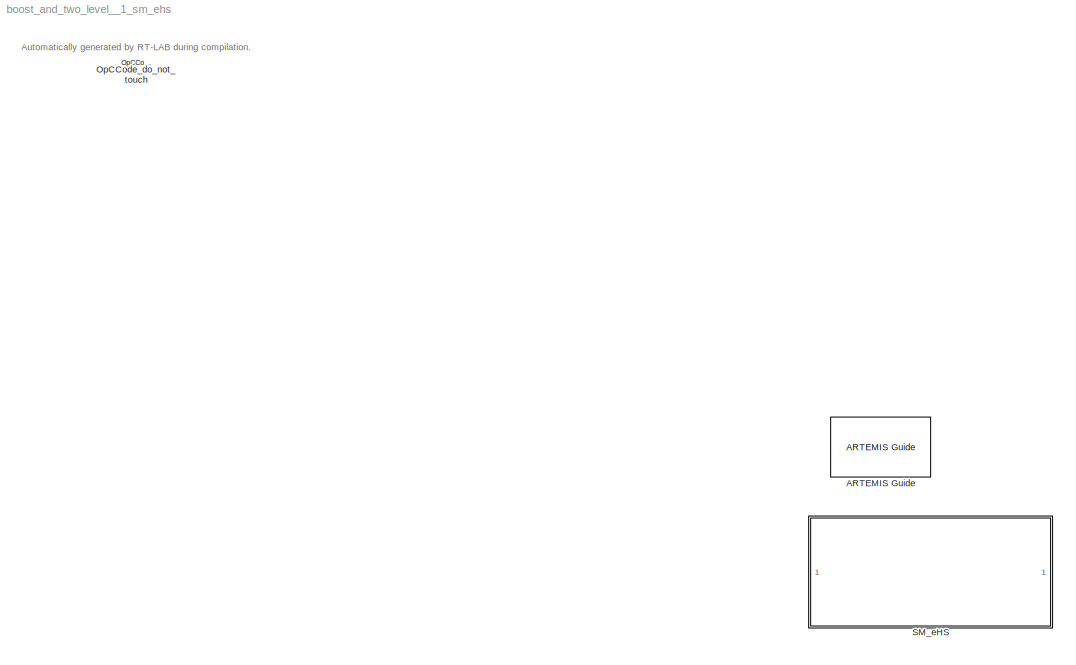
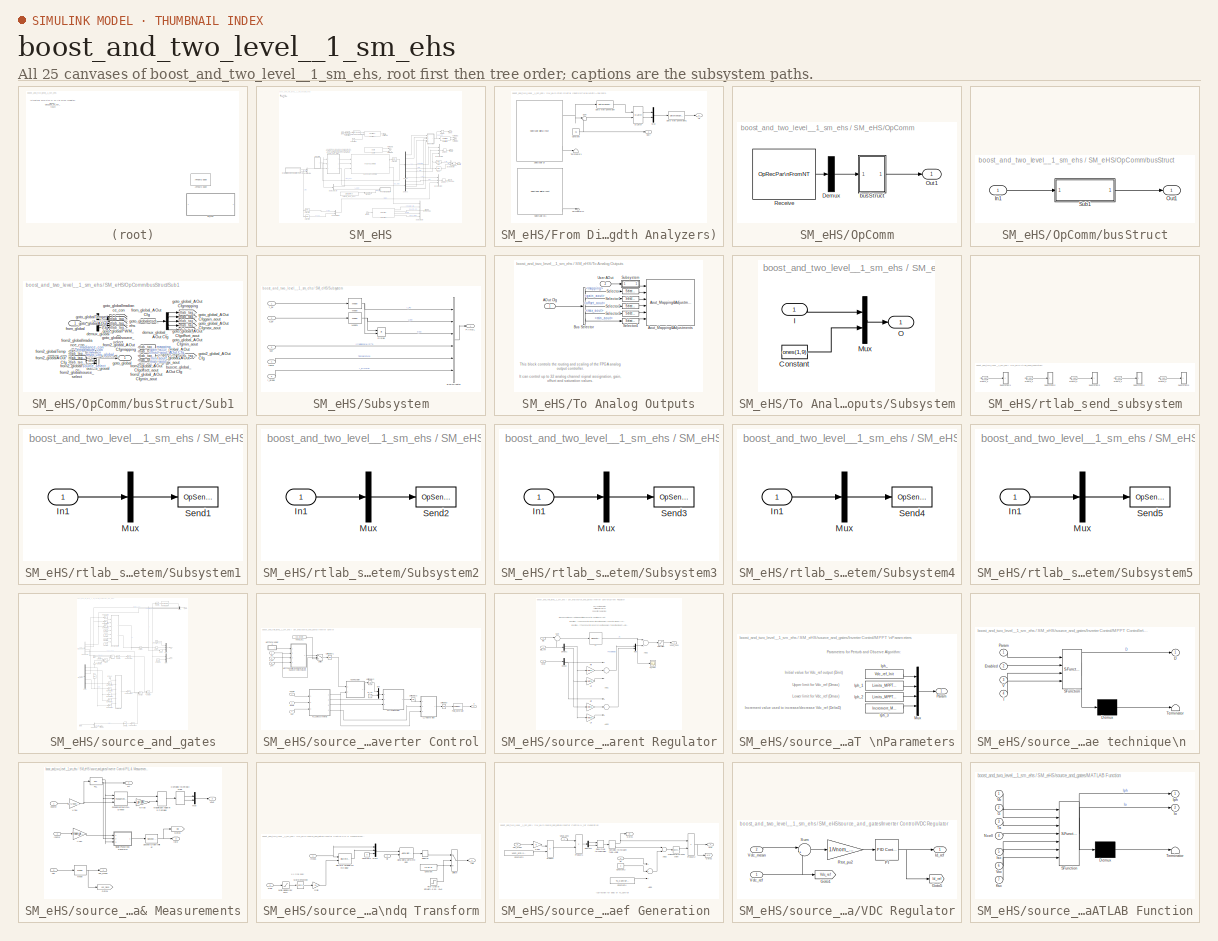
[diagram: thumbnail index - all 25 canvases of the model, root first then tree order]
MODEL boost_and_two_level__1_sm_ehs
KIND model
CONFIG InitFcn = Ts = 20e-6;
CONFIG PostLoadFcn = Ts = 20e-6;
BLOCK [Reference] ARTEMIS Guide  REF=artemis/ARTEMIS/ARTEMIS Guide
  Description = 5.0_z1
  LF = off
  Ports = []
  RT_fullcomp = off
  SID = 5534
  SPSRulesBlock = SPSRules
  SourceBlock = artemis/ARTEMIS/ARTEMIS Guide
  SourceType = ARTEMISmethode
  Tag = FTSSmethode_opal_4hx0r99
  Thy_Impulse = on
  Ts = Ts
  ao = on
  ct_mac = off
  ctmm = off
  custom_type = off
  dpl_type = ARTEMiS DPL
  dtc = Off
  dtc_extra = 1
  dtc_opt = normal
  dtc_pied = 0.5
  dtc_sws = normal
  dyna = off
  lin_mov = off
  lock = on
  lsp = [0.001 2]
  nb_perm = 4
  opt = art5
  para = on
  paraExtinctionThy = off
  rlc_type = off
  simtype = off
  spike_skip = Disabled
  ssn = on
  ssn_ImpulseLoopBlockedStateUpdate = 5
  ssn_ext = off
  ssn_impulse = off
  ssn_impulse_loop = 5
  ssn_itvc = off
  ssn_ivic = off
  ssn_mov_iter_number = 5
  ssn_quasimpulse = off
  ssn_solver = Art5 with Backward Euler nodal interface
  ssn_switch_iter_number = 5
  tre = on
BLOCK [Reference] OpCCode_do_not_touch  REF=opal_lib/Communication/OpCCode
  FunctionWithSeparateData = off
  GeneratePreprocessorConditionals = off
  Ports = []
  SID = 5555
  ShowPortLabels = FromPortIcon
  SourceBlock = opal_lib/Communication/OpCCode
  SystemSampleTime = -1
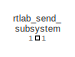
[diagram: SM_eHS - part 1/3, top left region]
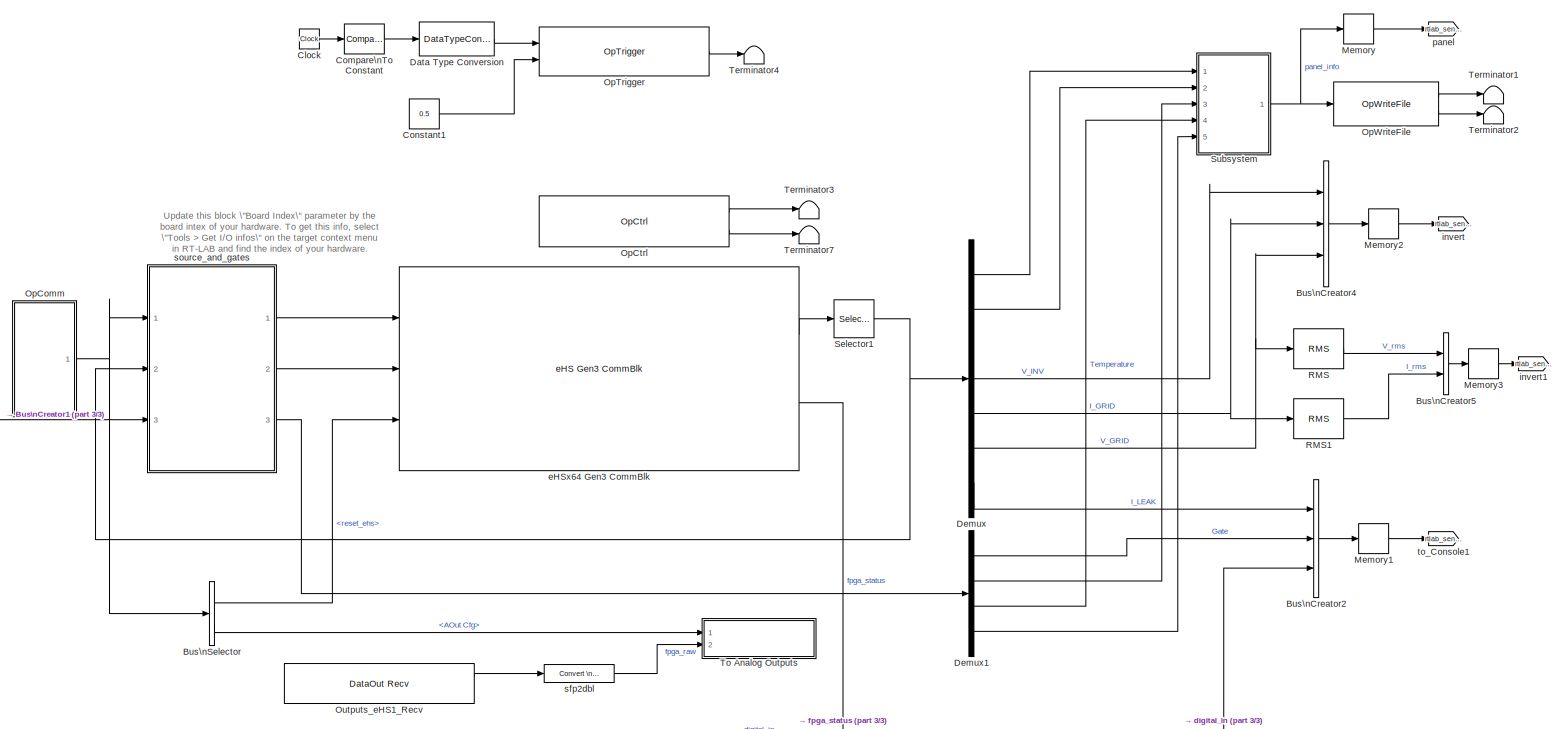
[diagram: SM_eHS - part 2/3, full width, middle band]
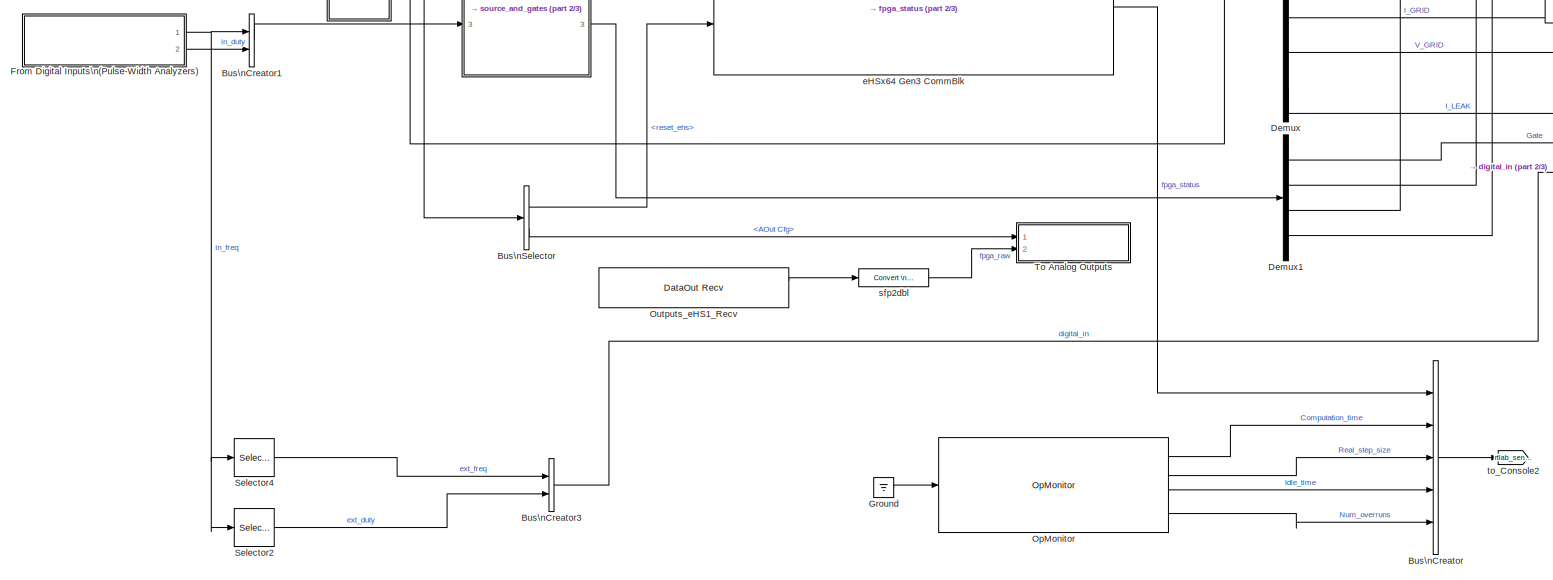
[diagram: SM_eHS - part 3/3, full width, bottom band]
BLOCK [SubSystem] SM_eHS
  Ports = []
  RequestExecContextInheritance = off
  SID = 4882
BLOCK [BusCreator] SM_eHS/Bus\nCreator
  DisplayOption = bar
  Inputs = 5
  Ports = [5, 1]
  SID = 5259
BLOCK [BusCreator] SM_eHS/Bus\nCreator1
  DisplayOption = bar
  Inputs = 2
  Ports = [2, 1]
  SID = 5450
BLOCK [BusCreator] SM_eHS/Bus\nCreator2
  DisplayOption = bar
  Inputs = 3
  Ports = [3, 1]
  SID = 5428
BLOCK [BusCreator] SM_eHS/Bus\nCreator3
  DisplayOption = bar
  Inputs = 2
  Ports = [2, 1]
  SID = 5472
BLOCK [BusCreator] SM_eHS/Bus\nCreator4
  DisplayOption = bar
  Inputs = 3
  Ports = [3, 1]
  SID = 5489
BLOCK [BusCreator] SM_eHS/Bus\nCreator5
  DisplayOption = bar
  Inputs = 2
  Ports = [2, 1]
  SID = 5506
BLOCK [BusSelector] SM_eHS/Bus\nSelector
  OutputSignals = reset_ehs,AOut Cfg
  Ports = [1, 2]
  SID = 4884
BLOCK [Clock] SM_eHS/Clock
  SID = 5243
BLOCK [Reference] SM_eHS/Compare\nTo Constant  REF=simulink/Logic and Bit\nOperations/Compare\nTo Constant
  OutDataTypeStr = boolean
  Ports = [1, 1]
  SID = 5267
  SourceBlock = simulink/Logic and Bit\nOperations/Compare\nTo Constant
  SourceType = Compare To Constant
  ZeroCross = on
  const = 1
  relop = >=
BLOCK [Constant] SM_eHS/Constant1
  SID = 5246
  Value = 0.5
BLOCK [DataTypeConversion] SM_eHS/Data Type Conversion
  OutDataTypeStr = double
  RndMeth = Floor
  SID = 5255
  SaturateOnIntegerOverflow = off
BLOCK [Demux] SM_eHS/Demux
  DisplayOption = bar
  Outputs = 7
  Ports = [1, 7]
  SID = 5429
BLOCK [Demux] SM_eHS/Demux1
  DisplayOption = bar
  Ports = [1, 4]
  SID = 5430
BLOCK [SubSystem] SM_eHS/From Digital Inputs\n(Pulse-Width Analyzers)
  Ports = [0, 2]
  RequestExecContextInheritance = off
  SID = 5435
BLOCK [Constant] SM_eHS/From Digital Inputs\n(Pulse-Width Analyzers)/Constant
  SID = 5540
  Value = 0.5
BLOCK [Reference] SM_eHS/From Digital Inputs\n(Pulse-Width Analyzers)/D Latch  REF=simulink_extras/Flip Flops/D Latch
  Ports = [2, 2]
  SID = 5538
  SourceBlock = simulink_extras/Flip Flops/D Latch
  SourceType = DLatch
BLOCK [DataTypeConversion] SM_eHS/From Digital Inputs\n(Pulse-Width Analyzers)/Data Type Conversion
  RndMeth = Floor
  SID = 5544
  SaturateOnIntegerOverflow = off
BLOCK [DataTypeConversion] SM_eHS/From Digital Inputs\n(Pulse-Width Analyzers)/Data Type Conversion1
  RndMeth = Floor
  SID = 5546
  SaturateOnIntegerOverflow = off
BLOCK [Outport] SM_eHS/From Digital Inputs\n(Pulse-Width Analyzers)/Duty
  IconDisplay = Port number
  Port = 2
  SID = 5443
BLOCK [Outport] SM_eHS/From Digital Inputs\n(Pulse-Width Analyzers)/Hz
  IconDisplay = Port number
  SID = 5442
BLOCK [Mux] SM_eHS/From Digital Inputs\n(Pulse-Width Analyzers)/Mux
  DisplayOption = bar
  Inputs = 2
  Ports = [2, 1]
  SID = 5539
BLOCK [Reference] SM_eHS/From Digital Inputs\n(Pulse-Width Analyzers)/Selectable DI  REF=cpuhilios_lib/Selectable Digital Input
  AttributesFormatString = %<CtrlName>
  CtrlName = 'OpCtrl'
  DataInPortNumber = 5
  FcnNos = Slot 1 Module A Subsection 1
  IOTypeSel = Event Detector
  LoadInPortNumber = 13
  Ports = [0, 3]
  SID = 5438
  SourceBlock = cpuhilios_lib/Selectable Digital Input
  SourceType = Selectable Digital Input
  count = 1
  maxcount = 8
  sampleTime = 0
  timeUnit = Time ratio
  width = 1
BLOCK [Reference] SM_eHS/From Digital Inputs\n(Pulse-Width Analyzers)/Selectable DI1  REF=cpuhilios_lib/Selectable Digital Input
  AttributesFormatString = %<CtrlName>
  CtrlName = 'OpCtrl'
  DataInPortNumber = 6
  FcnNos = Slot 1 Module A Subsection 2
  IOTypeSel = Event Detector
  LoadInPortNumber = 14
  Ports = [0, 17]
  SID = 5439
  SourceBlock = cpuhilios_lib/Selectable Digital Input
  SourceType = Selectable Digital Input
  count = 8
  maxcount = 8
  sampleTime = 0
  timeUnit = Time ratio
  width = 0
BLOCK [Sum] SM_eHS/From Digital Inputs\n(Pulse-Width Analyzers)/Sum
  IconShape = round
  InputSameDT = off
  Inputs = |++
  OutDataTypeStr = Inherit: Inherit via internal rule
  Ports = [2, 1]
  SID = 5541
  SaturateOnIntegerOverflow = off
BLOCK [Terminator] SM_eHS/From Digital Inputs\n(Pulse-Width Analyzers)/Terminator1
  SID = 5535
BLOCK [Terminator] SM_eHS/From Digital Inputs\n(Pulse-Width Analyzers)/Terminator11
  SID = 5441
BLOCK [Ground] SM_eHS/Ground
  SID = 5258
BLOCK [Memory] SM_eHS/Memory
  SID = 5485
BLOCK [Memory] SM_eHS/Memory1
  SID = 5486
BLOCK [Memory] SM_eHS/Memory2
  SID = 5487
BLOCK [Memory] SM_eHS/Memory3
  SID = 5510
BLOCK [SubSystem] SM_eHS/OpComm
  Ports = [0, 1]
  RequestExecContextInheritance = off
  SID = 5594
BLOCK [Demux] SM_eHS/OpComm/Demux
  Outputs = [165]
  Ports = [1, 1]
  SID = 5595
BLOCK [Outport] SM_eHS/OpComm/Out1
  IconDisplay = Port number
  SID = 5631
BLOCK [Reference] SM_eHS/OpComm/Receive  REF=opal_lib/Communication/OpRecPar\nFromNT
  Data_width = 165
  InitialConditions = [1000;25;1;0;49;48;52;53;53;52;49;3;12;13;0;2;48;49;50;51;48;49;50;51;52;53;54;54;56;57;58;59;60;61;62;63;0.0063462;0.33;0.053848;0.0048614;0.0048614;0.066;0.0063462;0.005;0.1;0.1;0.1;0.1;0.005;0.1;0.1;0.1;1;1;1;1;1;1;1;1;1;1;1;1;1;1;1;1;0;0;1.65;1.65;1.65;1.65;0;0;0;0;0;0;0;0;0;0;0;0;0;0;0;0;0;0;0;0;0;0;0;0;0;0;3.3;3.3;3.3;3.3;3.3;3.3;3.3;5;5;5;5;5;16;16;16;16;16;16;16;16;16;16;16;16;16;16;16;16;...<+123ch>
  Ports = [0, 1]
  SID = 5596
  SourceBlock = opal_lib/Communication/OpRecPar\nFromNT
  SourceType = OPAL Receive Icon
BLOCK [SubSystem] SM_eHS/OpComm/busStruct
  Ports = [1, 1]
  RequestExecContextInheritance = off
  SID = 5597
BLOCK [Inport] SM_eHS/OpComm/busStruct/In1
  IconDisplay = Port number
  SID = 5598
BLOCK [Outport] SM_eHS/OpComm/busStruct/Out1
  IconDisplay = Port number
  SID = 5630
BLOCK [SubSystem] SM_eHS/OpComm/busStruct/Sub1
  Ports = [1, 1]
  RequestExecContextInheritance = off
  SID = 5599
BLOCK [BusCreator] SM_eHS/OpComm/busStruct/Sub1/buscre_global
  Inputs = 6
  Ports = [6, 1]
  SID = 5601
BLOCK [BusCreator] SM_eHS/OpComm/busStruct/Sub1/buscre_global_AOut Cfg
  Inputs = 5
  Ports = [5, 1]
  SID = 5602
BLOCK [Demux] SM_eHS/OpComm/busStruct/Sub1/demux_global
  Outputs = [1    1    1    1  160    1]
  Ports = [1, 6]
  SID = 5603
BLOCK [Demux] SM_eHS/OpComm/busStruct/Sub1/demux_global_AOut Cfg
  Outputs = [32  32  32  32  32]
  Ports = [1, 5]
  SID = 5604
BLOCK [From] SM_eHS/OpComm/busStruct/Sub1/from2_globalAOut Cfg
  GotoTag = rtlab_tag_7
  SID = 5605
BLOCK [From] SM_eHS/OpComm/busStruct/Sub1/from2_globalIrradiance_con
  GotoTag = rtlab_tag_1
  SID = 5606
BLOCK [From] SM_eHS/OpComm/busStruct/Sub1/from2_globalPWM_en
  GotoTag = rtlab_tag_3
  SID = 5607
BLOCK [From] SM_eHS/OpComm/busStruct/Sub1/from2_globalTemperature_con
  GotoTag = rtlab_tag_2
  SID = 5608
BLOCK [From] SM_eHS/OpComm/busStruct/Sub1/from2_global_AOut Cfggain_aout
  GotoTag = rtlab_tag_9
  SID = 5609
BLOCK [From] SM_eHS/OpComm/busStruct/Sub1/from2_global_AOut Cfgmapping
  GotoTag = rtlab_tag_8
  SID = 5610
BLOCK [From] SM_eHS/OpComm/busStruct/Sub1/from2_global_AOut Cfgmax_aout
  GotoTag = rtlab_tag_11
  SID = 5611
BLOCK [From] SM_eHS/OpComm/busStruct/Sub1/from2_global_AOut Cfgmin_aout
  GotoTag = rtlab_tag_12
  SID = 5612
BLOCK [From] SM_eHS/OpComm/busStruct/Sub1/from2_global_AOut Cfgoffset_aout
  GotoTag = rtlab_tag_10
  SID = 5613
BLOCK [From] SM_eHS/OpComm/busStruct/Sub1/from2_globalreset_ehs
  GotoTag = rtlab_tag_4
  SID = 5614
BLOCK [From] SM_eHS/OpComm/busStruct/Sub1/from2_globalsource_select
  GotoTag = rtlab_tag_6
  SID = 5615
BLOCK [Inport] SM_eHS/OpComm/busStruct/Sub1/from_global
  IconDisplay = Port number
  SID = 5600
BLOCK [From] SM_eHS/OpComm/busStruct/Sub1/from_global_AOut Cfg
  GotoTag = rtlab_tag_5
  SID = 5616
BLOCK [Goto] SM_eHS/OpComm/busStruct/Sub1/goto2_global_AOut Cfg
  GotoTag = rtlab_tag_7
  SID = 5617
BLOCK [Outport] SM_eHS/OpComm/busStruct/Sub1/goto_global
  IconDisplay = Port number
  SID = 5629
BLOCK [Goto] SM_eHS/OpComm/busStruct/Sub1/goto_globalAOut Cfg
  GotoTag = rtlab_tag_5
  SID = 5618
BLOCK [Goto] SM_eHS/OpComm/busStruct/Sub1/goto_globalIrradiance_con
  GotoTag = rtlab_tag_1
  SID = 5619
BLOCK [Goto] SM_eHS/OpComm/busStruct/Sub1/goto_globalPWM_en
  GotoTag = rtlab_tag_3
  SID = 5620
BLOCK [Goto] SM_eHS/OpComm/busStruct/Sub1/goto_globalTemperature_con
  GotoTag = rtlab_tag_2
  SID = 5621
BLOCK [Goto] SM_eHS/OpComm/busStruct/Sub1/goto_global_AOut Cfggain_aout
  GotoTag = rtlab_tag_9
  SID = 5622
BLOCK [Goto] SM_eHS/OpComm/busStruct/Sub1/goto_global_AOut Cfgmapping
  GotoTag = rtlab_tag_8
  SID = 5623
BLOCK [Goto] SM_eHS/OpComm/busStruct/Sub1/goto_global_AOut Cfgmax_aout
  GotoTag = rtlab_tag_11
  SID = 5624
BLOCK [Goto] SM_eHS/OpComm/busStruct/Sub1/goto_global_AOut Cfgmin_aout
  GotoTag = rtlab_tag_12
  SID = 5625
BLOCK [Goto] SM_eHS/OpComm/busStruct/Sub1/goto_global_AOut Cfgoffset_aout
  GotoTag = rtlab_tag_10
  SID = 5626
BLOCK [Goto] SM_eHS/OpComm/busStruct/Sub1/goto_globalreset_ehs
  GotoTag = rtlab_tag_4
  SID = 5627
BLOCK [Goto] SM_eHS/OpComm/busStruct/Sub1/goto_globalsource_select
  GotoTag = rtlab_tag_6
  SID = 5628
BLOCK [Reference] SM_eHS/OpCtrl  REF=rtio_opalrt_common/OpCtrl
  BitstreamFilename = MMPK7_1-EX-0001-2_3_2_19-300Series_eHSgen3_with_IOs-303-03.bin
  BoardType = MMPK7
  CtrlName = 'OpCtrl'
  Ports = [0, 2]
  SID = 4887
  SampleTime = 0
  SecondaryPresent = off
  SourceBlock = rtio_opalrt_common/OpCtrl
  SourceType = OpCtrlCommonMask
  boardid = 0
  calibIO = off
  decimRtsi = 0
  externalClock = off
  loadinport = -1
  mode = Master
  numconfig = -1
  sync_type = Audio
BLOCK [Reference] SM_eHS/OpMonitor  REF=rtlab/Monitoring/OpMonitor
  Ports = [1, 4]
  SID = 5257
  SourceBlock = rtlab/Monitoring/OpMonitor
  SourceType = OpMonitor
  compute_time = on
  idle_time = on
  nb_overruns = on
  real_step = on
  user_name = my_event_name,another_event_name
  user_time = off
BLOCK [Reference] SM_eHS/OpTrigger  REF=rtlab/DataLogging/OpTrigger
  Acq_Group = 26
  Ports = [2, 1]
  SID = 5242
  SourceBlock = rtlab/DataLogging/OpTrigger
  SourceType = OpTrigger
  Trig_Offset = 0
  Trig_Type = RISING OR FALLING EDGE
BLOCK [Reference] SM_eHS/OpWriteFile  REF=rtlab/DataLogging/OpWriteFile
  Acq_Group = 26
  Buffer_size = 1024*1024
  Decimation = 100
  Filename = myPV_inverter.mat
  Nb_Samples = 4e5
  Ports = [1, 2]
  SID = 5239
  Sim_Mode = off
  SourceBlock = rtlab/DataLogging/OpWriteFile
  SourceType = OpWriteFile
  Static_File = on
  file_size = 1024*1024*1024
  nrtpath = '.\\'
  rtpath = './'
  varname = opvar
  write_offline = off
BLOCK [Reference] SM_eHS/Outputs_eHS1_Recv  REF=rtio_opalrt_common/DataOut Recv
  AttributesFormatString = %<CtrlName>
  CtrlName = 'OpCtrl'
  FcnNos = 2
  Ports = [0, 2]
  SID = 4889
  SourceBlock = rtio_opalrt_common/DataOut Recv
  SourceType = OpFcnCommonRecv
  checkVersion = off
  expectedId = 0
  expectedVersion = 0
  opComp = >=
  portType = uint32
  sampleTime = 0
  width = 7
BLOCK [Reference] SM_eHS/RMS  REF=powerlib_meascontrol/Measurements/RMS
  Freq = 50
  Ports = [1, 1]
  RMSInit = 0
  SID = 5507
  SourceBlock = powerlib_meascontrol/Measurements/RMS
  SourceType = RMS
  TrueRMS = on
  Ts = 0
BLOCK [Reference] SM_eHS/RMS1  REF=powerlib_meascontrol/Measurements/RMS
  Freq = 50
  Ports = [1, 1]
  RMSInit = 0
  SID = 5508
  SourceBlock = powerlib_meascontrol/Measurements/RMS
  SourceType = RMS
  TrueRMS = on
  Ts = 0
BLOCK [Selector] SM_eHS/Selector1
  Indices = [1:7]
  Ports = [1, 1]
  SID = 4890
BLOCK [Selector] SM_eHS/Selector2
  Indices = [2]
  InputPortWidth = 2
  Ports = [1, 1]
  SID = 5542
BLOCK [Selector] SM_eHS/Selector4
  Indices = [1]
  InputPortWidth = 2
  Ports = [1, 1]
  SID = 5470
BLOCK [SubSystem] SM_eHS/Subsystem
  Ports = [5, 1]
  RequestExecContextInheritance = off
  SID = 5272
BLOCK [BusCreator] SM_eHS/Subsystem/Bus\nCreator
  DisplayOption = bar
  Inputs = 6
  Ports = [6, 1]
  SID = 5481
BLOCK [Product] SM_eHS/Subsystem/Divide
  InputSameDT = off
  Inputs = **
  OutDataTypeStr = Inherit: Inherit via internal rule
  Ports = [2, 1]
  RndMeth = Floor
  SID = 5269
  SaturateOnIntegerOverflow = off
BLOCK [Reference] SM_eHS/Subsystem/Mean  REF=powerlib_meascontrol/Measurements/Mean
  Freq = 50
  Ports = [1, 1]
  SID = 5270
  SourceBlock = powerlib_meascontrol/Measurements/Mean
  SourceType = Mean
  Ts = 0
  Vinit = 0
BLOCK [Reference] SM_eHS/Subsystem/Mean1  REF=powerlib_meascontrol/Measurements/Mean
  Freq = 50
  Ports = [1, 1]
  SID = 5271
  SourceBlock = powerlib_meascontrol/Measurements/Mean
  SourceType = Mean
  Ts = 0
  Vinit = 0
BLOCK [Outport] SM_eHS/Subsystem/PANEL
  IconDisplay = Port number
  SID = 5274
BLOCK [Inport] SM_eHS/Subsystem/i_diode
  IconDisplay = Port number
  Port = 5
  SID = 5483
BLOCK [Inport] SM_eHS/Subsystem/i_pv
  IconDisplay = Port number
  SID = 5273
BLOCK [Inport] SM_eHS/Subsystem/sun
  IconDisplay = Port number
  Port = 3
  SID = 5433
BLOCK [Inport] SM_eHS/Subsystem/temp
  IconDisplay = Port number
  Port = 4
  SID = 5482
BLOCK [Inport] SM_eHS/Subsystem/v_pv
  IconDisplay = Port number
  Port = 2
  SID = 5432
BLOCK [Terminator] SM_eHS/Terminator1
  SID = 5240
BLOCK [Terminator] SM_eHS/Terminator2
  SID = 5241
BLOCK [Terminator] SM_eHS/Terminator3
  SID = 4892
BLOCK [Terminator] SM_eHS/Terminator4
  SID = 5247
BLOCK [Terminator] SM_eHS/Terminator7
  SID = 4893
BLOCK [SubSystem] SM_eHS/To Analog Outputs
  Ports = [2]
  RequestExecContextInheritance = off
  SID = 5282
BLOCK [Inport] SM_eHS/To Analog Outputs/AOut Cfg
  IconDisplay = Port number
  SID = 5284
BLOCK [Reference] SM_eHS/To Analog Outputs/Aout_Mapping&Adjustments  REF=cpuhilios_lib/Aout_Mapping&Adjustments
  AttributesFormatString = %<CtrlerName>
  ChNum = 16 (1 Aout mezz)
  CtrlerName = 'OpCtrl'
  DataInId = 15
  LoadInId = 4
  Ports = [6]
  SID = 5285
  SourceBlock = cpuhilios_lib/Aout_Mapping&Adjustments
  SourceType = eFPGAsim Aout Mapping and Adjustment cpu block
  UserAoutNum = 16
  block_index = 0
BLOCK [BusSelector] SM_eHS/To Analog Outputs/Bus Selector
  OutputSignals = mapping,gain_aout,offset_aout,max_aout,min_aout
  Ports = [1, 5]
  SID = 5286
BLOCK [Selector] SM_eHS/To Analog Outputs/Selector
  Indices = [1:1:16]
  InputPortWidth = 32
  Ports = [1, 1]
  SID = 5287
BLOCK [Selector] SM_eHS/To Analog Outputs/Selector1
  Indices = [1:1:16]
  InputPortWidth = 32
  Ports = [1, 1]
  SID = 5288
BLOCK [Selector] SM_eHS/To Analog Outputs/Selector2
  Indices = [1:1:16]
  InputPortWidth = 32
  Ports = [1, 1]
  SID = 5289
BLOCK [Selector] SM_eHS/To Analog Outputs/Selector3
  Indices = [1:1:16]
  InputPortWidth = 32
  Ports = [1, 1]
  SID = 5290
BLOCK [Selector] SM_eHS/To Analog Outputs/Selector4
  Indices = [1:1:16]
  InputPortWidth = 32
  Ports = [1, 1]
  SID = 5291
BLOCK [SubSystem] SM_eHS/To Analog Outputs/Subsystem
  Ports = [1, 1]
  RequestExecContextInheritance = off
  SID = 5292
BLOCK [Constant] SM_eHS/To Analog Outputs/Subsystem/Constant
  SID = 5294
  Value = ones(1,9)
BLOCK [Inport] SM_eHS/To Analog Outputs/Subsystem/I
  IconDisplay = Port number
  SID = 5293
BLOCK [Mux] SM_eHS/To Analog Outputs/Subsystem/Mux
  DisplayOption = bar
  Inputs = 2
  Ports = [2, 1]
  SID = 5295
BLOCK [Outport] SM_eHS/To Analog Outputs/Subsystem/O
  IconDisplay = Port number
  SID = 5296
BLOCK [Inport] SM_eHS/To Analog Outputs/User AOut
  IconDisplay = Port number
  Port = 2
  SID = 5283
BLOCK [Reference] SM_eHS/eHSx64 Gen3 CommBlk  REF=cpuconverter_lib/eHS Gen3 CommBlk
  AttributesFormatString = %<CtrlName>
  CtrlName = 'OpCtrl'
  GateCtrlSelPanel = off
  GenMat = off
  Input_config1_popup = Constant from RT-LAB block (all)
  Polarity1 = zeros(1,72)
  Polarity1_popup = Active-high (all)
  PortNbs = [1 2 1 2:1:2+8 1]
  Ports = [3, 2]
  Pulse_ctrl1 = [ 0 0 ; 0 1 ; 0 2 ; 0 3 ]
  Pulse_ctrl1_popup = Independent setting for each element
  SID = 4894
  SWGPortNbs = 3
  ShowAdv1 = on
  SimeHS1 = off
  SourceBlock = cpuconverter_lib/eHS Gen3 CommBlk
  SourceType = eHS Gen3 solver
  Ts = Ts
  Ts_eHS_1 = 2.5e-07
  Ts_eHS_1_explicit = on
  UseSWG = off
  blkid1 = 0
  circuit_mtx1 = my_pv_sys_fpga.mdl
  gs1 = 0.076389
  i_init1 = zeros(1,24)
  input_config_1 = [zeros(32,1)  (0:31)']
  input_names = U01\n14,400 V | U02 IPH\n | U03 ID
  input_nb = 3
  input_nb_auto = on
  nb_event = 4
  nb_nsd = 10
  nb_sw = 4
  nb_u = 3
  nb_y = 7
  netlist_name = my_pv_sys_fpga.mdl
  nscn_max = 102
  nscn_used = 1
  output_names = Y01 IPANEL I | Y02 VPANEL U | Y03 VPH U | Y04 VINV U | Y05 IGRID I | Y06 VGRID U | Y07 IG I
  pulse_nb = 8
  rte_pulse_nb = SW01-08
  scn_cmd = do nothing
  scn_en = off
  scn_log_en = on
  solver_size = x64
  static_pulse = none
  switches_names = SW01-04_01 | SW01-04_02 | SW01-04_03 | SW01-04_04
  ts_min = 2.05e-07
  v_init1 = 400*ones(1,24)
  xls_file = diode_bridge.xls
  xls_page = 1
BLOCK [Goto] SM_eHS/invert
  GotoTag = rtlab_send_4
  SID = 5661
  TagVisibility = global
BLOCK [Goto] SM_eHS/invert1
  GotoTag = rtlab_send_5
  SID = 5662
  TagVisibility = global
BLOCK [Goto] SM_eHS/panel
  GotoTag = rtlab_send_3
  SID = 5660
  TagVisibility = global
BLOCK [SubSystem] SM_eHS/rtlab_send_subsystem
  Ports = []
  Priority = -100
  RequestExecContextInheritance = off
  SID = 5632
BLOCK [From] SM_eHS/rtlab_send_subsystem/From1_1
  GotoTag = rtlab_send_1
  SID = 5636
BLOCK [From] SM_eHS/rtlab_send_subsystem/From2_1
  GotoTag = rtlab_send_2
  SID = 5641
BLOCK [From] SM_eHS/rtlab_send_subsystem/From3_1
  GotoTag = rtlab_send_4
  SID = 5646
BLOCK [From] SM_eHS/rtlab_send_subsystem/From4_1
  GotoTag = rtlab_send_3
  SID = 5651
BLOCK [From] SM_eHS/rtlab_send_subsystem/From5_1
  GotoTag = rtlab_send_5
  SID = 5656
BLOCK [SubSystem] SM_eHS/rtlab_send_subsystem/Subsystem1
  Ports = [1]
  RequestExecContextInheritance = off
  SID = 5633
BLOCK [Inport] SM_eHS/rtlab_send_subsystem/Subsystem1/In1
  IconDisplay = Port number
  SID = 5637
BLOCK [Mux] SM_eHS/rtlab_send_subsystem/Subsystem1/Mux
  Inputs = 1
  Ports = [1, 1]
  SID = 5634
BLOCK [Reference] SM_eHS/rtlab_send_subsystem/Subsystem1/Send1  REF=opal_lib/Communication/OpSendToNT
  Acqu_group = 1
  Ports = [1]
  SID = 5635
  SourceBlock = opal_lib/Communication/OpSendToNT
  SourceType = OPAL Send Icon
BLOCK [SubSystem] SM_eHS/rtlab_send_subsystem/Subsystem2
  Ports = [1]
  RequestExecContextInheritance = off
  SID = 5638
BLOCK [Inport] SM_eHS/rtlab_send_subsystem/Subsystem2/In1
  IconDisplay = Port number
  SID = 5642
BLOCK [Mux] SM_eHS/rtlab_send_subsystem/Subsystem2/Mux
  Inputs = 1
  Ports = [1, 1]
  SID = 5639
BLOCK [Reference] SM_eHS/rtlab_send_subsystem/Subsystem2/Send2  REF=opal_lib/Communication/OpSendToNT
  Acqu_group = 2
  Ports = [1]
  SID = 5640
  SourceBlock = opal_lib/Communication/OpSendToNT
  SourceType = OPAL Send Icon
BLOCK [SubSystem] SM_eHS/rtlab_send_subsystem/Subsystem3
  Ports = [1]
  RequestExecContextInheritance = off
  SID = 5643
BLOCK [Inport] SM_eHS/rtlab_send_subsystem/Subsystem3/In1
  IconDisplay = Port number
  SID = 5647
BLOCK [Mux] SM_eHS/rtlab_send_subsystem/Subsystem3/Mux
  Inputs = 1
  Ports = [1, 1]
  SID = 5644
BLOCK [Reference] SM_eHS/rtlab_send_subsystem/Subsystem3/Send3  REF=opal_lib/Communication/OpSendToNT
  Acqu_group = 4
  Ports = [1]
  SID = 5645
  SourceBlock = opal_lib/Communication/OpSendToNT
  SourceType = OPAL Send Icon
BLOCK [SubSystem] SM_eHS/rtlab_send_subsystem/Subsystem4
  Ports = [1]
  RequestExecContextInheritance = off
  SID = 5648
BLOCK [Inport] SM_eHS/rtlab_send_subsystem/Subsystem4/In1
  IconDisplay = Port number
  SID = 5652
BLOCK [Mux] SM_eHS/rtlab_send_subsystem/Subsystem4/Mux
  Inputs = 1
  Ports = [1, 1]
  SID = 5649
BLOCK [Reference] SM_eHS/rtlab_send_subsystem/Subsystem4/Send4  REF=opal_lib/Communication/OpSendToNT
  Acqu_group = 3
  Ports = [1]
  SID = 5650
  SourceBlock = opal_lib/Communication/OpSendToNT
  SourceType = OPAL Send Icon
BLOCK [SubSystem] SM_eHS/rtlab_send_subsystem/Subsystem5
  Ports = [1]
  RequestExecContextInheritance = off
  SID = 5653
BLOCK [Inport] SM_eHS/rtlab_send_subsystem/Subsystem5/In1
  IconDisplay = Port number
  SID = 5657
BLOCK [Mux] SM_eHS/rtlab_send_subsystem/Subsystem5/Mux
  Inputs = 1
  Ports = [1, 1]
  SID = 5654
BLOCK [Reference] SM_eHS/rtlab_send_subsystem/Subsystem5/Send5  REF=opal_lib/Communication/OpSendToNT
  Acqu_group = 5
  Ports = [1]
  SID = 5655
  SourceBlock = opal_lib/Communication/OpSendToNT
  SourceType = OPAL Send Icon
BLOCK [Reference] SM_eHS/sfp2dbl  REF=rtlab/Miscellaneous/Convert \nSingle floating-point (FPGA) \nto double
  Ports = [1, 1]
  SID = 4895
  SourceBlock = rtlab/Miscellaneous/Convert \nSingle floating-point (FPGA) \nto double
  SourceType = Convert Single floating-point (FPGA) to double
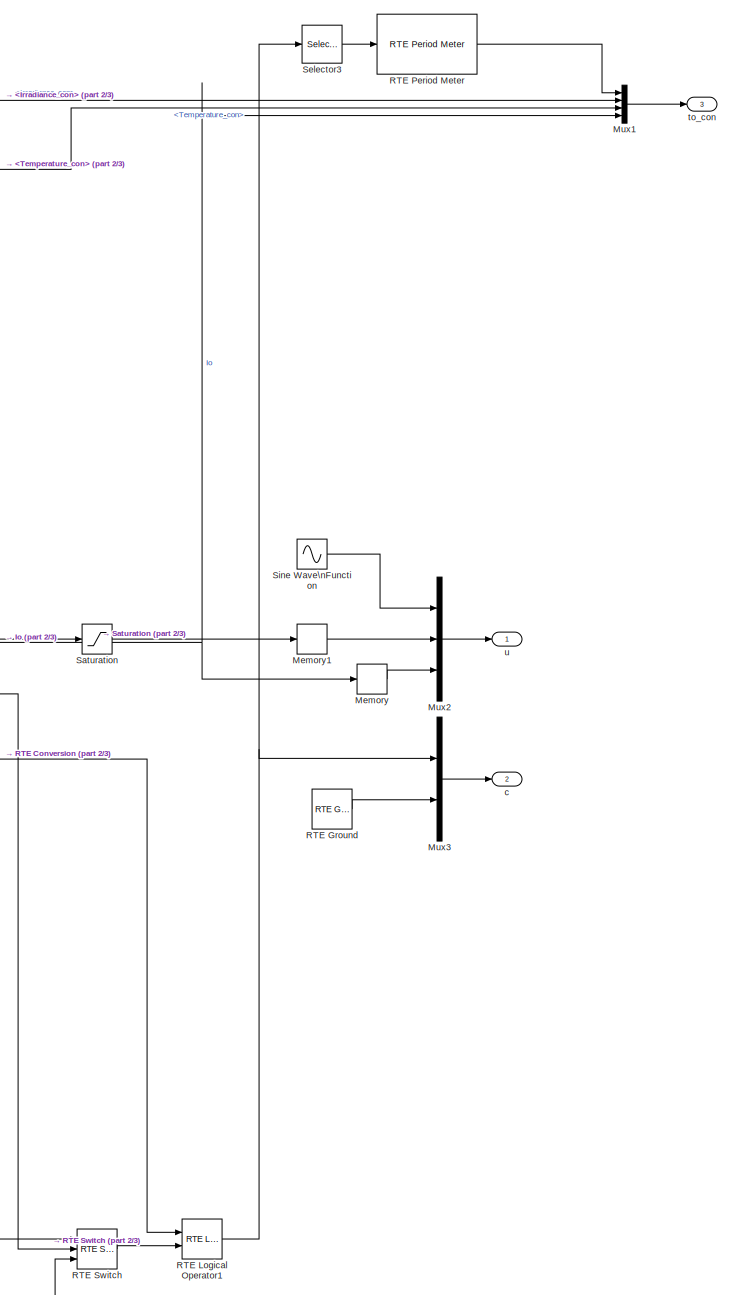
[diagram: SM_eHS/source_and_gates - part 1/3, right side, full height]
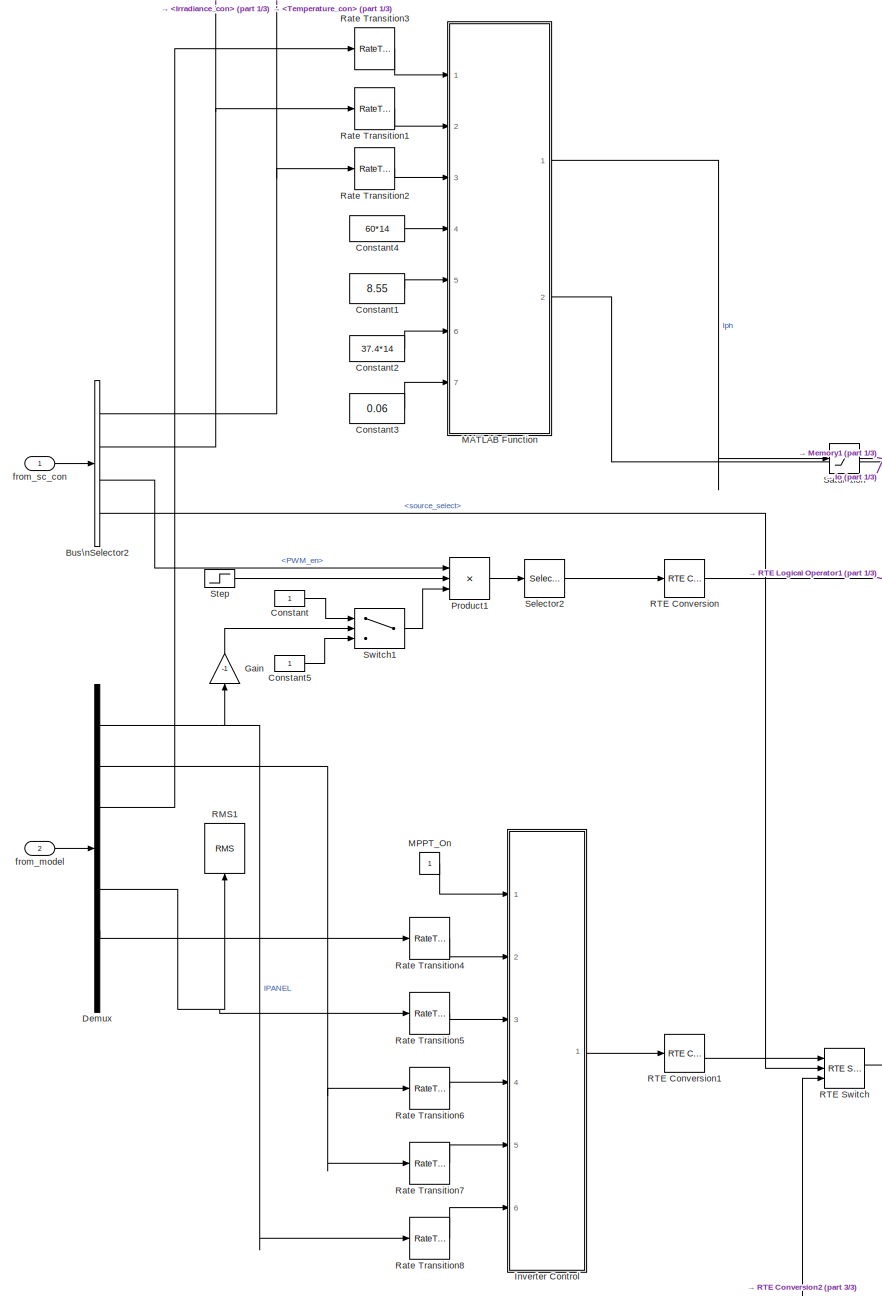
[diagram: SM_eHS/source_and_gates - part 2/3, left side, full height]
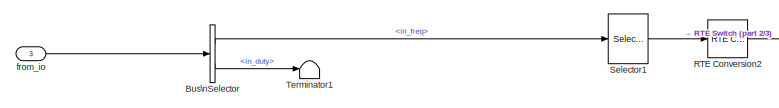
[diagram: SM_eHS/source_and_gates - part 3/3, bottom left region]
BLOCK [SubSystem] SM_eHS/source_and_gates
  Ports = [3, 3]
  RequestExecContextInheritance = off
  SID = 4896
BLOCK [BusSelector] SM_eHS/source_and_gates/Bus\nSelector
  OutputSignals = in_freq,in_duty
  Ports = [1, 2]
  SID = 5452
BLOCK [BusSelector] SM_eHS/source_and_gates/Bus\nSelector2
  OutputSignals = Temperature_con,Irradiance_con,PWM_en,source_select
  Ports = [1, 4]
  SID = 4899
BLOCK [Constant] SM_eHS/source_and_gates/Constant
  SID = 5529
BLOCK [Constant] SM_eHS/source_and_gates/Constant1
  SID = 4900
  Value = 8.55
BLOCK [Constant] SM_eHS/source_and_gates/Constant2
  SID = 4901
  Value = 37.4*14
BLOCK [Constant] SM_eHS/source_and_gates/Constant3
  SID = 4902
  Value = 0.06
BLOCK [Constant] SM_eHS/source_and_gates/Constant4
  SID = 4903
  Value = 60*14
BLOCK [Constant] SM_eHS/source_and_gates/Constant5
  SID = 5530
BLOCK [Demux] SM_eHS/source_and_gates/Demux
  DisplayOption = bar
  Outputs = 7
  Ports = [1, 7]
  SID = 4906
BLOCK [Gain] SM_eHS/source_and_gates/Gain
  Gain = -1
  OutDataTypeStr = Inherit: Inherit via internal rule
  ParamDataTypeStr = Inherit: Inherit via internal rule
  SID = 5532
  SaturateOnIntegerOverflow = off
BLOCK [SubSystem] SM_eHS/source_and_gates/Inverter Control
  Ports = [6, 1]
  RequestExecContextInheritance = off
  SID = 5098
BLOCK [SubSystem] SM_eHS/source_and_gates/Inverter Control/Current Regulator
  Ports = [3, 1]
  RequestExecContextInheritance = off
  SID = 5105
BLOCK [Sum] SM_eHS/source_and_gates/Inverter Control/Current Regulator/Add1
  InputSameDT = off
  Inputs = ++-
  OutDataTypeStr = Inherit: Inherit via internal rule
  Ports = [3, 1]
  SID = 5109
  SaturateOnIntegerOverflow = off
BLOCK [Sum] SM_eHS/source_and_gates/Inverter Control/Current Regulator/Add2
  InputSameDT = off
  OutDataTypeStr = Inherit: Inherit via internal rule
  Ports = [2, 1]
  SID = 5110
  SaturateOnIntegerOverflow = off
BLOCK [Sum] SM_eHS/source_and_gates/Inverter Control/Current Regulator/Add3
  InputSameDT = off
  Inputs = +++
  OutDataTypeStr = Inherit: Inherit via internal rule
  Ports = [3, 1]
  SID = 5111
  SaturateOnIntegerOverflow = off
BLOCK [Demux] SM_eHS/source_and_gates/Inverter Control/Current Regulator/Demux
  DisplayOption = bar
  Outputs = 2
  Ports = [1, 2]
  SID = 5112
BLOCK [Demux] SM_eHS/source_and_gates/Inverter Control/Current Regulator/Demux1
  DisplayOption = bar
  Outputs = 2
  Ports = [1, 2]
  SID = 5113
BLOCK [Inport] SM_eHS/source_and_gates/Inverter Control/Current Regulator/IdIq
  IconDisplay = Port number
  Port = 3
  PortDimensions = 2
  SID = 5108
BLOCK [Inport] SM_eHS/source_and_gates/Inverter Control/Current Regulator/IdIq_ref
  IconDisplay = Port number
  PortDimensions = 2
  SID = 5106
BLOCK [Gain] SM_eHS/source_and_gates/Inverter Control/Current Regulator/Lff
  Gain = RLff(2)
  SID = 5114
BLOCK [Gain] SM_eHS/source_and_gates/Inverter Control/Current Regulator/Lff  
  Gain = RLff(2)
  SID = 5115
BLOCK [Mux] SM_eHS/source_and_gates/Inverter Control/Current Regulator/Mux
  DisplayOption = bar
  Inputs = 2
  Ports = [2, 1]
  SID = 5116
BLOCK [Reference] SM_eHS/source_and_gates/Inverter Control/Current Regulator/PI  REF=simulink/Continuous/PID Controller
  AntiWindupMode = none
  Controller = PI
  D = 0
  DOutDataTypeStr = Inherit: Inherit via internal rule
  DOutMax = []
  DOutMin = []
  DParamDataTypeStr = Inherit: Inherit via internal rule
  DParamMax = []
  DParamMin = []
  DifferentiatorICPrevScaledInput = 0
  DifferentiatorOutDataTypeStr = Inherit: Inherit via internal rule
  DifferentiatorOutMax = []
  DifferentiatorOutMin = []
  ExternalReset = none
  FilterContinuousStateAttributes = ''
  FilterMethod = Forward Euler
  FilterOutDataTypeStr = Inherit: Inherit via internal rule
  FilterOutMax = []
  FilterOutMin = []
  FilterRTWStateStorageClass = Auto
  FilterStateMustResolveToSignalObject = off
  Form = Parallel
  I = Ki_Ireg
  IOutDataTypeStr = Inherit: Inherit via internal rule
  IOutMax = []
  IOutMin = []
  IParamDataTypeStr = Inherit: Inherit via internal rule
  IParamMax = []
  IParamMin = []
  IgnoreLimit = off
  InitialConditionForFilter = 0
  InitialConditionForIntegrator = 0
  InitialConditionSource = internal
  IntegratorContinuousStateAttributes = ''
  IntegratorMethod = Forward Euler
  IntegratorOutDataTypeStr = Inherit: Inherit via internal rule
  IntegratorOutMax = []
  IntegratorOutMin = []
  IntegratorRTWStateStorageClass = Auto
  IntegratorStateMustResolveToSignalObject = off
  Kb = 1
  KbOutDataTypeStr = Inherit: Inherit via internal rule
  KbOutMax = []
  KbOutMin = []
  KbParamDataTypeStr = Inherit: Inherit via internal rule
  KbParamMax = []
  KbParamMin = []
  Kt = 1
  KtOutDataTypeStr = Inherit: Inherit via internal rule
  KtOutMax = []
  KtOutMin = []
  KtParamDataTypeStr = Inherit: Inherit via internal rule
  KtParamMax = []
  KtParamMin = []
  LimitOutput = on
  LinearizeAsGain = off
  LockScale = off
  LowerSaturationLimit = -1.5
  N = 100
  NOutDataTypeStr = Inherit: Inherit via internal rule
  NOutMax = []
  NOutMin = []
  NParamDataTypeStr = Inherit: Inherit via internal rule
  NParamMax = []
  NParamMin = []
  P = Kp_Ireg
  POutDataTypeStr = Inherit: Inherit via internal rule
  POutMax = []
  POutMin = []
  PParamDataTypeStr = Inherit: Inherit via internal rule
  PParamMax = []
  PParamMin = []
  Ports = [1, 1]
  RndMeth = Floor
  SID = 5117
  SampleTime = Ts_Control
  SaturateOnIntegerOverflow = off
  SaturationOutDataTypeStr = Inherit: Same as input
  SaturationOutMax = []
  SaturationOutMin = []
  SourceBlock = simulink/Continuous/PID Controller
  SourceType = PID 1dof
  SumAccumDataTypeStr = Inherit: Inherit via internal rule
  SumDAccumDataTypeStr = Inherit: Inherit via internal rule
  SumDOutDataTypeStr = Inherit: Inherit via internal rule
  SumDOutMax = []
  SumDOutMin = []
  SumI1AccumDataTypeStr = Inherit: Inherit via internal rule
  SumI1OutDataTypeStr = Inherit: Inherit via internal rule
  SumI1OutMax = []
  SumI1OutMin = []
  SumI2AccumDataTypeStr = Inherit: Inherit via internal rule
  SumI2OutDataTypeStr = Inherit: Inherit via internal rule
  SumI2OutMax = []
  SumI2OutMin = []
  SumI3AccumDataTypeStr = Inherit: Inherit via internal rule
  SumI3OutDataTypeStr = Inherit: Inherit via internal rule
  SumI3OutMax = []
  SumI3OutMin = []
  SumOutDataTypeStr = Inherit: Inherit via internal rule
  SumOutMax = []
  SumOutMin = []
  TimeDomain = Discrete-time
  TrackingMode = off
  UpperSaturationLimit = 1.5
  UseFilter = on
  ZeroCross = on
BLOCK [Scope] SM_eHS/source_and_gates/Inverter Control/Current Regulator/PI_Ireg1
  Floating = off
  LimitDataPoints = off
  NumInputPorts = 1
  Ports = [1]
  SID = 5118
  ShowLegends = off
  YMax = 0.45
  YMin = -0.25
BLOCK [Gain] SM_eHS/source_and_gates/Inverter Control/Current Regulator/Rff
  Gain = RLff(1)
  SID = 5119
BLOCK [Gain] SM_eHS/source_and_gates/Inverter Control/Current Regulator/Rff 
  Gain = RLff(1)
  SID = 5120
BLOCK [Saturate] SM_eHS/source_and_gates/Inverter Control/Current Regulator/Saturation
  InputPortMap = u0
  LowerLimit = -1.5
  Ports = [1, 1]
  SID = 5121
  UpperLimit = 1.5
BLOCK [Sum] SM_eHS/source_and_gates/Inverter Control/Current Regulator/Sum
  IconShape = round
  InputSameDT = off
  Inputs = |-+
  OutDataTypeStr = Inherit: Inherit via internal rule
  Ports = [2, 1]
  SID = 5122
  SaturateOnIntegerOverflow = off
BLOCK [Inport] SM_eHS/source_and_gates/Inverter Control/Current Regulator/VdVq
  IconDisplay = Port number
  Port = 2
  PortDimensions = 2
  SID = 5107
BLOCK [Outport] SM_eHS/source_and_gates/Inverter Control/Current Regulator/VdVq_conv
  IconDisplay = Port number
  SID = 5123
BLOCK [Inport] SM_eHS/source_and_gates/Inverter Control/I_PV
  IconDisplay = Port number
  Port = 6
  PortDimensions = 1
  SID = 5104
BLOCK [Inport] SM_eHS/source_and_gates/Inverter Control/Ihome
  IconDisplay = Port number
  Port = 3
  PortDimensions = 1
  SID = 5101
BLOCK [Constant] SM_eHS/source_and_gates/Inverter Control/Iq_ref
  SID = 5129
  Value = 0
BLOCK [SubSystem] SM_eHS/source_and_gates/Inverter Control/MPPT Controller\nusing Perturbe \n& Observe technique\n 
  ErrorFcn = Stateflow.Translate.translate
  PermitHierarchicalResolution = ExplicitOnly
  Ports = [4, 1]
  RequestExecContextInheritance = off
  SFBlockType = MATLAB Function
  SID = 5142
  TreatAsAtomicUnit = on
BLOCK [Demux] SM_eHS/source_and_gates/Inverter Control/MPPT Controller\nusing Perturbe \n& Observe technique\n / Demux 
  Outputs = 1
  Ports = [1, 1]
  SID = 5142::127
BLOCK [S-Function] SM_eHS/source_and_gates/Inverter Control/MPPT Controller\nusing Perturbe \n& Observe technique\n / SFunction 
  EnableBusSupport = on
  FunctionName = sf_sfun
  PortCounts = [4 2]
  Ports = [4, 2]
  SID = 5142::126
  Tag = Stateflow S-Function boost_and_two_level__1_sm_ehs 2
BLOCK [Terminator] SM_eHS/source_and_gates/Inverter Control/MPPT Controller\nusing Perturbe \n& Observe technique\n / Terminator 
  SID = 5142::128
BLOCK [Outport] SM_eHS/source_and_gates/Inverter Control/MPPT Controller\nusing Perturbe \n& Observe technique\n /D
  IconDisplay = Port number
  SID = 5142::35
BLOCK [Inport] SM_eHS/source_and_gates/Inverter Control/MPPT Controller\nusing Perturbe \n& Observe technique\n /Enabled
  IconDisplay = Port number
  Port = 2
  SID = 5142::91
BLOCK [Inport] SM_eHS/source_and_gates/Inverter Control/MPPT Controller\nusing Perturbe \n& Observe technique\n /I
  IconDisplay = Port number
  Port = 4
  SID = 5142::1
BLOCK [Inport] SM_eHS/source_and_gates/Inverter Control/MPPT Controller\nusing Perturbe \n& Observe technique\n /Param
  IconDisplay = Port number
  SID = 5142::90
BLOCK [Inport] SM_eHS/source_and_gates/Inverter Control/MPPT Controller\nusing Perturbe \n& Observe technique\n /V
  IconDisplay = Port number
  Port = 3
  SID = 5142::85
BLOCK [SubSystem] SM_eHS/source_and_gates/Inverter Control/MPPT \nParameters
  Ports = [0, 1]
  RequestExecContextInheritance = off
  SID = 5130
BLOCK [Constant] SM_eHS/source_and_gates/Inverter Control/MPPT \nParameters/Iph_
  SID = 5131
  Value = Vdc_ref_Init
BLOCK [Constant] SM_eHS/source_and_gates/Inverter Control/MPPT \nParameters/Iph_1
  SID = 5132
  Value = Limits_MPPT(1)
BLOCK [Constant] SM_eHS/source_and_gates/Inverter Control/MPPT \nParameters/Iph_2
  SID = 5133
  Value = Limits_MPPT(2)
BLOCK [Constant] SM_eHS/source_and_gates/Inverter Control/MPPT \nParameters/Iph_3
  SID = 5134
  Value = Increment_MPPT
BLOCK [Mux] SM_eHS/source_and_gates/Inverter Control/MPPT \nParameters/Mux
  DisplayOption = bar
  Ports = [4, 1]
  SID = 5135
BLOCK [Outport] SM_eHS/source_and_gates/Inverter Control/MPPT \nParameters/Param
  IconDisplay = Port number
  SID = 5136
BLOCK [Mux] SM_eHS/source_and_gates/Inverter Control/Mux
  DisplayOption = bar
  Inputs = 2
  Ports = [2, 1]
  SID = 5143
BLOCK [Inport] SM_eHS/source_and_gates/Inverter Control/On
  IconDisplay = Port number
  PortDimensions = 1
  SID = 5099
BLOCK [SubSystem] SM_eHS/source_and_gates/Inverter Control/PLL & Measurements
  Ports = [3, 4]
  RequestExecContextInheritance = off
  SID = 5144
BLOCK [Gain] SM_eHS/source_and_gates/Inverter Control/PLL & Measurements/A->pu
  Gain = Vnom_prim/Pnom/sqrt(2)
  SID = 5148
BLOCK [ComplexToRealImag] SM_eHS/source_and_gates/Inverter Control/PLL & Measurements/Complex to\nReal-Imag
  Ports = [1, 2]
  SID = 5149
BLOCK [Reference] SM_eHS/source_and_gates/Inverter Control/PLL & Measurements/Fundamental\n(PLL-Driven)  REF=powerlib_meascontrol/Measurements/Fundamental\n(PLL-Driven)
  Finit = Fnom
  Fmin = 45
  InInit = [1, 0]
  Ports = [3, 2]
  SID = 5150
  SourceBlock = powerlib_meascontrol/Measurements/Fundamental\n(PLL-Driven)
  SourceType = Fundamental (PLL-Driven)
  Ts = Ts_Control
BLOCK [Goto] SM_eHS/source_and_gates/Inverter Control/PLL & Measurements/Goto1
  GotoTag = Vdc_mean
  SID = 5151
  TagVisibility = global
BLOCK [Goto] SM_eHS/source_and_gates/Inverter Control/PLL & Measurements/Goto3
  GotoTag = IdIq
  SID = 5152
  TagVisibility = global
BLOCK [Outport] SM_eHS/source_and_gates/Inverter Control/PLL & Measurements/IdIq
  IconDisplay = Port number
  Port = 3
  SID = 5179
BLOCK [Inport] SM_eHS/source_and_gates/Inverter Control/PLL & Measurements/Ihome
  IconDisplay = Port number
  Port = 2
  SID = 5146
BLOCK [MagnitudeAngleToComplex] SM_eHS/source_and_gates/Inverter Control/PLL & Measurements/Magnitude-Angle\nto Complex
  Ports = [2, 1]
  SID = 5153
BLOCK [Reference] SM_eHS/source_and_gates/Inverter Control/PLL & Measurements/Mean  REF=powerlib_meascontrol/Measurements/Mean
  Freq = Fnom
  Ports = [1, 1]
  SID = 5154
  SourceBlock = powerlib_meascontrol/Measurements/Mean
  SourceType = Mean
  Ts = Ts_Control
  Vinit = Vdc_ref_Init
BLOCK [Mux] SM_eHS/source_and_gates/Inverter Control/PLL & Measurements/Mux
  DisplayOption = bar
  Inputs = 2
  Ports = [2, 1]
  SID = 5155
BLOCK [Reference] SM_eHS/source_and_gates/Inverter Control/PLL & Measurements/PLL  REF=powerlib_meascontrol/PLL/PLL
  AGC = on
  FilterCutOffFreq = 25
  Fmin = 40
  MaxRateChangeFreq = 12
  ParK = [180, 3200, 1]
  Par_Init = [0, Fnom]
  Ports = [1, 2]
  SID = 5156
  SourceBlock = powerlib_meascontrol/PLL/PLL
  SourceType = PLL
  TcD = 1e-4
  Ts = Ts_Control
BLOCK [Reference] SM_eHS/source_and_gates/Inverter Control/PLL & Measurements/Second-Order\nFilter  REF=powerlib_meascontrol/Filters/Second-Order\nFilter
  FilterType = Lowpass
  Fo = 2000
  FreqRange = [0, 500, 1]
  Initialize = on
  PlotResponse = off
  Ports = [1, 1]
  SID = 5157
  SourceBlock = powerlib_meascontrol/Filters/Second-Order\nFilter
  SourceType = Second-Order Filter
  Ts = Ts_Control
  Vac_Init = [0,  0,  60;0,0,60]
  Vdc_Init = [0.9 0]
  Zeta = 1
BLOCK [SubSystem] SM_eHS/source_and_gates/Inverter Control/PLL & Measurements/Single-Phase\ndq Transform
  Ports = [3, 1]
  RequestExecContextInheritance = off
  SID = 5158
BLOCK [Reference] SM_eHS/source_and_gates/Inverter Control/PLL & Measurements/Single-Phase\ndq Transform/Alpha-Beta-Zero\nto dq0  REF=powerlib_meascontrol/Transformations/Alpha-Beta-Zero\nto dq0
  Alignment = 90 degrees behind phase A axis
  Ports = [2, 1]
  SID = 5162
  SourceBlock = powerlib_meascontrol/Transformations/Alpha-Beta-Zero\nto dq0
  SourceType = Alpha-Beta-Zero to dq0 Transformation
BLOCK [Constant] SM_eHS/source_and_gates/Inverter Control/PLL & Measurements/Single-Phase\ndq Transform/Constant
  SID = 5163
  Value = [0.92 0]
BLOCK [Constant] SM_eHS/source_and_gates/Inverter Control/PLL & Measurements/Single-Phase\ndq Transform/Constant1
  SID = 5164
  Value = 0
BLOCK [Reference] SM_eHS/source_and_gates/Inverter Control/PLL & Measurements/Single-Phase\ndq Transform/Discrete Variable\nTime Delay  REF=powerlib_meascontrol/Additional Components/Discrete Variable\nTime Delay
  DFT = on
  InitialValue = 0
  MaxDelay = 1
  Ports = [2, 1]
  SID = 5165
  SourceBlock = powerlib_meascontrol/Additional Components/Discrete Variable\nTime Delay
  SourceType = Discrete Variable Time Delay
  Ts = Ts_Control
BLOCK [Step] SM_eHS/source_and_gates/Inverter Control/PLL & Measurements/Single-Phase\ndq Transform/First cycle of simulation\nId=0.92, Iq=0
  SID = 5166
  SampleTime = Ts_Control
  Time = 1/Fnom
BLOCK [Inport] SM_eHS/source_and_gates/Inverter Control/PLL & Measurements/Single-Phase\ndq Transform/Freq
  IconDisplay = Port number
  Port = 3
  SID = 5161
BLOCK [Gain] SM_eHS/source_and_gates/Inverter Control/PLL & Measurements/Single-Phase\ndq Transform/Gain
  Gain = 1/4
  OutDataTypeStr = Inherit: Inherit via internal rule
  ParamDataTypeStr = Inherit: Inherit via internal rule
  SID = 5167
  SaturateOnIntegerOverflow = off
BLOCK [Outport] SM_eHS/source_and_gates/Inverter Control/PLL & Measurements/Single-Phase\ndq Transform/Idq
  IconDisplay = Port number
  SID = 5173
BLOCK [Inport] SM_eHS/source_and_gates/Inverter Control/PLL & Measurements/Single-Phase\ndq Transform/Imeas
  IconDisplay = Port number
  SID = 5159
BLOCK [Math] SM_eHS/source_and_gates/Inverter Control/PLL & Measurements/Single-Phase\ndq Transform/Math\nFunction
  Operator = reciprocal
  Ports = [1, 1]
  SID = 5168
BLOCK [Mux] SM_eHS/source_and_gates/Inverter Control/PLL & Measurements/Single-Phase\ndq Transform/Mux1
  DisplayOption = bar
  Inputs = 3
  Ports = [3, 1]
  SID = 5169
BLOCK [Selector] SM_eHS/source_and_gates/Inverter Control/PLL & Measurements/Single-Phase\ndq Transform/Selector
  Indices = [1 2]
  InputPortWidth = 3
  Ports = [1, 1]
  SID = 5170
BLOCK [Switch] SM_eHS/source_and_gates/Inverter Control/PLL & Measurements/Single-Phase\ndq Transform/Switch
  Criteria = u2 ~= 0
  InputSameDT = off
  SID = 5171
  SaturateOnIntegerOverflow = off
BLOCK [Saturate] SM_eHS/source_and_gates/Inverter Control/PLL & Measurements/Single-Phase\ndq Transform/avoid division\nby zero
  InputPortMap = u0
  LowerLimit = 40
  Ports = [1, 1]
  SID = 5172
  UpperLimit = 70
BLOCK [Inport] SM_eHS/source_and_gates/Inverter Control/PLL & Measurements/Single-Phase\ndq Transform/wt
  IconDisplay = Port number
  Port = 2
  SID = 5160
BLOCK [Gain] SM_eHS/source_and_gates/Inverter Control/PLL & Measurements/V->pu
  Gain = 1/(Vnom_prim*sqrt(2))
  SID = 5175
BLOCK [Outport] SM_eHS/source_and_gates/Inverter Control/PLL & Measurements/VdVq
  IconDisplay = Port number
  Port = 2
  SID = 5178
BLOCK [Inport] SM_eHS/source_and_gates/Inverter Control/PLL & Measurements/Vdc
  IconDisplay = Port number
  Port = 3
  SID = 5147
BLOCK [Outport] SM_eHS/source_and_gates/Inverter Control/PLL & Measurements/Vdc_mean
  IconDisplay = Port number
  SID = 5177
BLOCK [Inport] SM_eHS/source_and_gates/Inverter Control/PLL & Measurements/Vhome
  IconDisplay = Port number
  SID = 5145
BLOCK [Gain] SM_eHS/source_and_gates/Inverter Control/PLL & Measurements/to-rad
  Gain = pi/180
  OutDataTypeStr = Inherit: Inherit via internal rule
  ParamDataTypeStr = Inherit: Inherit via internal rule
  SID = 5176
  SaturateOnIntegerOverflow = off
BLOCK [Outport] SM_eHS/source_and_gates/Inverter Control/PLL & Measurements/wt
  IconDisplay = Port number
  Port = 4
  SID = 5180
BLOCK [Reference] SM_eHS/source_and_gates/Inverter Control/PWM_Generator  REF=powerlib_meascontrol/Pulse & Signal\nGenerators/PWM Generator\n(2-Level)
  AttributesFormatString = %<ModulatorType>
  Fc = Fc
  Freq = 60
  MinMax = [ -1  1 ]
  ModulatingSignals = off
  ModulatorMode = Unsynchronized
  ModulatorType = Single-phase full-bridge - Bipolar modulation (4 pulses)
  Pc = 90
  Phase = 0
  Ports = [1, 1]
  SID = 5424
  SamplingTechnique = Natural
  ShowCarrierOutport = off
  SourceBlock = powerlib_meascontrol/Pulse & Signal\nGenerators/PWM Generator\n(2-Level)
  SourceType = PWM Generator (2-Level)
  Ts = Ts_PWMgenerator
  m = 0.8
  nF = 27
BLOCK [Switch] SM_eHS/source_and_gates/Inverter Control/Switch
  Criteria = u2 ~= 0
  InputSameDT = off
  SID = 5182
  SaturateOnIntegerOverflow = off
BLOCK [SubSystem] SM_eHS/source_and_gates/Inverter Control/U_ref Generation 
  Ports = [3, 1]
  RequestExecContextInheritance = off
  SID = 5183
BLOCK [Sum] SM_eHS/source_and_gates/Inverter Control/U_ref Generation /Add1
  InputSameDT = off
  Inputs = +++
  OutDataTypeStr = Inherit: Inherit via internal rule
  Ports = [3, 1]
  SID = 5187
  SaturateOnIntegerOverflow = off
BLOCK [Sum] SM_eHS/source_and_gates/Inverter Control/U_ref Generation /Add2
  InputSameDT = off
  OutDataTypeStr = Inherit: Inherit via internal rule
  Ports = [2, 1]
  SID = 5188
  SaturateOnIntegerOverflow = off
BLOCK [ComplexToMagnitudeAngle] SM_eHS/source_and_gates/Inverter Control/U_ref Generation /Complex to\nMagnitude-Angle
  Ports = [1, 2]
  SID = 5189
BLOCK [Constant] SM_eHS/source_and_gates/Inverter Control/U_ref Generation /Constant2
  SID = 5190
  Value = 0
BLOCK [Constant] SM_eHS/source_and_gates/Inverter Control/U_ref Generation /Constant3
  SID = 5191
  Value = Vnom_prim*sqrt(2)
BLOCK [Constant] SM_eHS/source_and_gates/Inverter Control/U_ref Generation /Constant4
  SID = 5192
  Value = Ts_Control*Fnom*(2*pi)
BLOCK [Demux] SM_eHS/source_and_gates/Inverter Control/U_ref Generation /Demux1
  DisplayOption = bar
  Outputs = 2
  Ports = [1, 2]
  SID = 5193
BLOCK [Gain] SM_eHS/source_and_gates/Inverter Control/U_ref Generation /Gain1
  OutDataTypeStr = Inherit: Inherit via internal rule
  ParamDataTypeStr = Inherit: Inherit via internal rule
  SID = 5194
  SaturateOnIntegerOverflow = off
BLOCK [Goto] SM_eHS/source_and_gates/Inverter Control/U_ref Generation /Goto1
  GotoTag = m
  SID = 5195
  TagVisibility = global
BLOCK [Goto] SM_eHS/source_and_gates/Inverter Control/U_ref Generation /Goto2
  GotoTag = Uref
  SID = 5196
  TagVisibility = global
BLOCK [Product] SM_eHS/source_and_gates/Inverter Control/U_ref Generation /Product
  InputSameDT = off
  Inputs = */
  OutDataTypeStr = Inherit: Inherit via internal rule
  Ports = [2, 1]
  SID = 5197
  SaturateOnIntegerOverflow = off
BLOCK [Product] SM_eHS/source_and_gates/Inverter Control/U_ref Generation /Product1
  InputSameDT = off
  Inputs = */
  OutDataTypeStr = Inherit: Inherit via internal rule
  Ports = [2, 1]
  SID = 5198
  SaturateOnIntegerOverflow = off
BLOCK [Product] SM_eHS/source_and_gates/Inverter Control/U_ref Generation /Product2
  InputSameDT = off
  Inputs = **
  OutDataTypeStr = Inherit: Inherit via internal rule
  Ports = [2, 1]
  SID = 5199
  SaturateOnIntegerOverflow = off
BLOCK [RealImagToComplex] SM_eHS/source_and_gates/Inverter Control/U_ref Generation /Real-Imag to\nComplex
  Ports = [2, 1]
  SID = 5200
BLOCK [Trigonometry] SM_eHS/source_and_gates/Inverter Control/U_ref Generation /Trigonometric\nFunction
  Ports = [1, 1]
  SID = 5201
BLOCK [Outport] SM_eHS/source_and_gates/Inverter Control/U_ref Generation /Uref
  IconDisplay = Port number
  SID = 5202
BLOCK [Inport] SM_eHS/source_and_gates/Inverter Control/U_ref Generation /VdVq_conv
  IconDisplay = Port number
  SID = 5184
BLOCK [Inport] SM_eHS/source_and_gates/Inverter Control/U_ref Generation /Vdc_mean
  IconDisplay = Port number
  Port = 3
  SID = 5186
BLOCK [Inport] SM_eHS/source_and_gates/Inverter Control/U_ref Generation /wt
  IconDisplay = Port number
  Port = 2
  SID = 5185
BLOCK [UnitDelay] SM_eHS/source_and_gates/Inverter Control/Unit\nDelay
  InitialCondition = 0.1684
  InputProcessing = Elements as channels (sample based)
  SID = 5204
  SampleTime = Ts_Control
BLOCK [UnitDelay] SM_eHS/source_and_gates/Inverter Control/Unit\nDelay1
  InputProcessing = Elements as channels (sample based)
  SID = 5205
  SampleTime = Ts_Control
BLOCK [UnitDelay] SM_eHS/source_and_gates/Inverter Control/Unit\nDelay2
  InputProcessing = Elements as channels (sample based)
  SID = 5206
  SampleTime = Ts_Control
BLOCK [UnitDelay] SM_eHS/source_and_gates/Inverter Control/Unit\nDelay3
  InputProcessing = Elements as channels (sample based)
  SID = 5207
  SampleTime = Ts_Control
BLOCK [SubSystem] SM_eHS/source_and_gates/Inverter Control/VDC Regulator
  Ports = [2, 1]
  RequestExecContextInheritance = off
  SID = 5208
BLOCK [Goto] SM_eHS/source_and_gates/Inverter Control/VDC Regulator/Goto1
  GotoTag = Vdc_ref
  SID = 5211
  TagVisibility = global
BLOCK [Goto] SM_eHS/source_and_gates/Inverter Control/VDC Regulator/Goto5
  GotoTag = Id_ref
  SID = 5212
  TagVisibility = global
BLOCK [Outport] SM_eHS/source_and_gates/Inverter Control/VDC Regulator/Id_ref
  IconDisplay = Port number
  InitialOutput = 0
  SID = 5216
BLOCK [Reference] SM_eHS/source_and_gates/Inverter Control/VDC Regulator/PI  REF=simulink/Continuous/PID Controller
  AntiWindupMode = none
  Controller = PI
  D = 0
  DOutDataTypeStr = Inherit: Inherit via internal rule
  DOutMax = []
  DOutMin = []
  DParamDataTypeStr = Inherit: Inherit via internal rule
  DParamMax = []
  DParamMin = []
  DifferentiatorICPrevScaledInput = 0
  DifferentiatorOutDataTypeStr = Inherit: Inherit via internal rule
  DifferentiatorOutMax = []
  DifferentiatorOutMin = []
  ExternalReset = none
  FilterContinuousStateAttributes = ''
  FilterMethod = Forward Euler
  FilterOutDataTypeStr = Inherit: Inherit via internal rule
  FilterOutMax = []
  FilterOutMin = []
  FilterRTWStateStorageClass = Auto
  FilterStateMustResolveToSignalObject = off
  Form = Parallel
  I = Ki_VDCreg
  IOutDataTypeStr = Inherit: Inherit via internal rule
  IOutMax = []
  IOutMin = []
  IParamDataTypeStr = Inherit: Inherit via internal rule
  IParamMax = []
  IParamMin = []
  IgnoreLimit = off
  InitialConditionForFilter = 0
  InitialConditionForIntegrator = 0.9226
  InitialConditionSource = internal
  IntegratorContinuousStateAttributes = ''
  IntegratorMethod = Trapezoidal
  IntegratorOutDataTypeStr = Inherit: Inherit via internal rule
  IntegratorOutMax = []
  IntegratorOutMin = []
  IntegratorRTWStateStorageClass = Auto
  IntegratorStateMustResolveToSignalObject = off
  Kb = 1
  KbOutDataTypeStr = Inherit: Inherit via internal rule
  KbOutMax = []
  KbOutMin = []
  KbParamDataTypeStr = Inherit: Inherit via internal rule
  KbParamMax = []
  KbParamMin = []
  Kt = 1
  KtOutDataTypeStr = Inherit: Inherit via internal rule
  KtOutMax = []
  KtOutMin = []
  KtParamDataTypeStr = Inherit: Inherit via internal rule
  KtParamMax = []
  KtParamMin = []
  LimitOutput = on
  LinearizeAsGain = off
  LockScale = off
  LowerSaturationLimit = -1.5
  N = 100
  NOutDataTypeStr = Inherit: Inherit via internal rule
  NOutMax = []
  NOutMin = []
  NParamDataTypeStr = Inherit: Inherit via internal rule
  NParamMax = []
  NParamMin = []
  P = Kp_VDCreg
  POutDataTypeStr = Inherit: Inherit via internal rule
  POutMax = []
  POutMin = []
  PParamDataTypeStr = Inherit: Inherit via internal rule
  PParamMax = []
  PParamMin = []
  Ports = [1, 1]
  RndMeth = Floor
  SID = 5213
  SampleTime = Ts_Control
  SaturateOnIntegerOverflow = off
  SaturationOutDataTypeStr = Inherit: Same as input
  SaturationOutMax = []
  SaturationOutMin = []
  SourceBlock = simulink/Continuous/PID Controller
  SourceType = PID 1dof
  SumAccumDataTypeStr = Inherit: Inherit via internal rule
  SumDAccumDataTypeStr = Inherit: Inherit via internal rule
  SumDOutDataTypeStr = Inherit: Inherit via internal rule
  SumDOutMax = []
  SumDOutMin = []
  SumI1AccumDataTypeStr = Inherit: Inherit via internal rule
  SumI1OutDataTypeStr = Inherit: Inherit via internal rule
  SumI1OutMax = []
  SumI1OutMin = []
  SumI2AccumDataTypeStr = Inherit: Inherit via internal rule
  SumI2OutDataTypeStr = Inherit: Inherit via internal rule
  SumI2OutMax = []
  SumI2OutMin = []
  SumI3AccumDataTypeStr = Inherit: Inherit via internal rule
  SumI3OutDataTypeStr = Inherit: Inherit via internal rule
  SumI3OutMax = []
  SumI3OutMin = []
  SumOutDataTypeStr = Inherit: Inherit via internal rule
  SumOutMax = []
  SumOutMin = []
  TimeDomain = Discrete-time
  TrackingMode = off
  UpperSaturationLimit = 1.5
  UseFilter = on
  ZeroCross = on
BLOCK [Gain] SM_eHS/source_and_gates/Inverter Control/VDC Regulator/Rtot_pu2
  Gain = 1/Vnom_dc
  SID = 5214
BLOCK [Sum] SM_eHS/source_and_gates/Inverter Control/VDC Regulator/Sum
  IconShape = round
  InputSameDT = off
  Inputs = |+-
  OutDataTypeStr = Inherit: Inherit via internal rule
  Ports = [2, 1]
  SID = 5215
  SaturateOnIntegerOverflow = off
BLOCK [Inport] SM_eHS/source_and_gates/Inverter Control/VDC Regulator/Vdc_mean
  IconDisplay = Port number
  Port = 2
  PortDimensions = 1
  SID = 5210
BLOCK [Inport] SM_eHS/source_and_gates/Inverter Control/VDC Regulator/Vdc_ref
  IconDisplay = Port number
  PortDimensions = 1
  SID = 5209
BLOCK [Inport] SM_eHS/source_and_gates/Inverter Control/V_PV
  IconDisplay = Port number
  Port = 5
  PortDimensions = 1
  SID = 5103
BLOCK [Inport] SM_eHS/source_and_gates/Inverter Control/Vdc
  IconDisplay = Port number
  Port = 4
  PortDimensions = 1
  SID = 5102
BLOCK [Inport] SM_eHS/source_and_gates/Inverter Control/Vhome
  IconDisplay = Port number
  Port = 2
  PortDimensions = 1
  SID = 5100
BLOCK [Constant] SM_eHS/source_and_gates/Inverter Control/Vnom_dc1
  SID = 5217
  Value = Vdc_ref_Init
BLOCK [Outport] SM_eHS/source_and_gates/Inverter Control/g
  IconDisplay = Port number
  SID = 5218
BLOCK [SubSystem] SM_eHS/source_and_gates/MATLAB Function
  ErrorFcn = Stateflow.Translate.translate
  PermitHierarchicalResolution = ExplicitOnly
  Ports = [7, 2]
  RequestExecContextInheritance = off
  SFBlockType = MATLAB Function
  SID = 5027
  TreatAsAtomicUnit = on
BLOCK [Demux] SM_eHS/source_and_gates/MATLAB Function/ Demux 
  Outputs = 1
  Ports = [1, 1]
  SID = 5027::17
BLOCK [S-Function] SM_eHS/source_and_gates/MATLAB Function/ SFunction 
  EnableBusSupport = on
  FunctionName = sf_sfun
  PortCounts = [7 3]
  Ports = [7, 3]
  SID = 5027::16
  Tag = Stateflow S-Function boost_and_two_level__1_sm_ehs 1
BLOCK [Terminator] SM_eHS/source_and_gates/MATLAB Function/ Terminator 
  SID = 5027::18
BLOCK [Inport] SM_eHS/source_and_gates/MATLAB Function/G
  IconDisplay = Port number
  Port = 2
  SID = 5027::19
BLOCK [Outport] SM_eHS/source_and_gates/MATLAB Function/Io
  IconDisplay = Port number
  Port = 2
  SID = 5027::36
BLOCK [Outport] SM_eHS/source_and_gates/MATLAB Function/Iph
  IconDisplay = Port number
  SID = 5027::5
BLOCK [Inport] SM_eHS/source_and_gates/MATLAB Function/Isc
  IconDisplay = Port number
  Port = 5
  SID = 5027::33
BLOCK [Inport] SM_eHS/source_and_gates/MATLAB Function/Ksc
  IconDisplay = Port number
  Port = 7
  SID = 5027::35
BLOCK [Inport] SM_eHS/source_and_gates/MATLAB Function/Ncell
  IconDisplay = Port number
  Port = 4
  SID = 5027::32
BLOCK [Inport] SM_eHS/source_and_gates/MATLAB Function/Ta
  IconDisplay = Port number
  Port = 3
  SID = 5027::20
BLOCK [Inport] SM_eHS/source_and_gates/MATLAB Function/Vb
  IconDisplay = Port number
  SID = 5027::29
BLOCK [Inport] SM_eHS/source_and_gates/MATLAB Function/Voc
  IconDisplay = Port number
  Port = 6
  SID = 5027::34
BLOCK [Constant] SM_eHS/source_and_gates/MPPT_On
  SID = 5028
BLOCK [Memory] SM_eHS/source_and_gates/Memory
  InheritSampleTime = on
  LinearizeAsDelay = on
  SID = 5090
BLOCK [Memory] SM_eHS/source_and_gates/Memory1
  InheritSampleTime = on
  LinearizeAsDelay = on
  SID = 5091
BLOCK [Mux] SM_eHS/source_and_gates/Mux1
  DisplayOption = bar
  Ports = [4, 1]
  SID = 5030
BLOCK [Mux] SM_eHS/source_and_gates/Mux2
  DisplayOption = bar
  Inputs = 3
  Ports = [3, 1]
  SID = 5031
BLOCK [Mux] SM_eHS/source_and_gates/Mux3
  DisplayOption = bar
  Inputs = 2
  Ports = [2, 1]
  SID = 5069
BLOCK [Product] SM_eHS/source_and_gates/Product1
  InputSameDT = off
  Inputs = 3
  OutDataTypeStr = Inherit: Inherit via internal rule
  Ports = [3, 1]
  SID = 5032
  SaturateOnIntegerOverflow = off
BLOCK [Reference] SM_eHS/source_and_gates/RMS1  REF=powerlib_meascontrol/Measurements/RMS
  Freq = 50
  Ports = [1, 1]
  RMSInit = 0
  SID = 5533
  SourceBlock = powerlib_meascontrol/Measurements/RMS
  SourceType = RMS
  TrueRMS = on
  Ts = 0
BLOCK [Reference] SM_eHS/source_and_gates/RTE Conversion  REF=rteventslib/Signal\nAttributes/RTE Conversion
  Ports = [1, 1]
  SID = 5033
  SourceBlock = rteventslib/Signal\nAttributes/RTE Conversion
  SourceType = RTE Conversion
  compensation = Enabled
  inputdatatype = Double
  nbMaxEvents = 100
  outputdatatype = RTE Boolean
  sampleTime = Ts
BLOCK [Reference] SM_eHS/source_and_gates/RTE Conversion1  REF=rteventslib/Signal\nAttributes/RTE Conversion
  Ports = [1, 1]
  SID = 5427
  SourceBlock = rteventslib/Signal\nAttributes/RTE Conversion
  SourceType = RTE Conversion
  compensation = Enabled
  inputdatatype = Double
  nbMaxEvents = 4
  outputdatatype = RTE Boolean
  sampleTime = Ts
BLOCK [Reference] SM_eHS/source_and_gates/RTE Conversion2  REF=rteventslib/Signal\nAttributes/RTE Conversion
  Ports = [1, 1]
  SID = 5519
  SourceBlock = rteventslib/Signal\nAttributes/RTE Conversion
  SourceType = RTE Conversion
  compensation = Enabled
  inputdatatype = Double
  nbMaxEvents = 4
  outputdatatype = RTE Boolean
  sampleTime = Ts
BLOCK [Reference] SM_eHS/source_and_gates/RTE Ground  REF=rteventslib/Sources/RTE Ground
  Ports = [0, 1]
  SID = 5068
  SampleTime = Ts
  SourceBlock = rteventslib/Sources/RTE Ground
  SourceType = RTE Ground
BLOCK [Reference] SM_eHS/source_and_gates/RTE Logical Operator1  REF=rteventslib/Math\nOperations/RTE Logical Operator
  LogicalOperator = AND
  NbrInput = 2
  NbrMaxEvents = 255
  Ports = [2, 1]
  SID = 5035
  SourceBlock = rteventslib/Math\nOperations/RTE Logical Operator
  SourceType = RTE Logical Operator
BLOCK [Reference] SM_eHS/source_and_gates/RTE Period Meter  REF=rteventslib/Signal\nAttributes/RTE Period Meter
  DuringType = Signal period
  DutyCycle = on
  EdgeType = Rising edges
  Frequency = off
  MinimumFrequency = 0
  Period = off
  Ports = [1, 1]
  SID = 5505
  SourceBlock = rteventslib/Signal\nAttributes/RTE Period Meter
  SourceType = RTE Period Meter
  TOff = off
  TOn = off
BLOCK [Reference] SM_eHS/source_and_gates/RTE Switch  REF=rteventslib/Signal\nRouting/RTE Switch
  Ports = [3, 1]
  SID = 5553
  SourceBlock = rteventslib/Signal\nRouting/RTE Switch
  SourceType = RTE Switch
  criteria = u2 >= Threshold
  interpolate = on
  nbMaxEvents = 10
  switchType = u2 = Double; u1 u3 = RTE Boolean
  threshold = 1
BLOCK [RateTransition] SM_eHS/source_and_gates/Rate Transition1
  SID = 5227
  X0 = 1000
BLOCK [RateTransition] SM_eHS/source_and_gates/Rate Transition2
  SID = 5228
  X0 = 25
BLOCK [RateTransition] SM_eHS/source_and_gates/Rate Transition3
  SID = 5226
  X0 = 400
BLOCK [RateTransition] SM_eHS/source_and_gates/Rate Transition4
  SID = 5229
BLOCK [RateTransition] SM_eHS/source_and_gates/Rate Transition5
  SID = 5230
BLOCK [RateTransition] SM_eHS/source_and_gates/Rate Transition6
  SID = 5231
  X0 = 400
BLOCK [RateTransition] SM_eHS/source_and_gates/Rate Transition7
  SID = 5232
  X0 = 400
BLOCK [RateTransition] SM_eHS/source_and_gates/Rate Transition8
  SID = 5233
BLOCK [Saturate] SM_eHS/source_and_gates/Saturation
  InputPortMap = u0
  LowerLimit = 0
  Ports = [1, 1]
  SID = 5097
  UpperLimit = 10
BLOCK [Selector] SM_eHS/source_and_gates/Selector1
  Indices = [1 2 2 1]
  InputPortWidth = 2
  Ports = [1, 1]
  SID = 5526
BLOCK [Selector] SM_eHS/source_and_gates/Selector2
  Indices = [ones(1,4)*1]
  InputPortWidth = 1
  Ports = [1, 1]
  SID = 5037
BLOCK [Selector] SM_eHS/source_and_gates/Selector3
  Indices = [1]
  Ports = [1, 1]
  SID = 5426
BLOCK [Sin] SM_eHS/source_and_gates/Sine Wave\nFunction
  Amplitude = 14400*sqrt(2)
  Frequency = 50*2*pi
  Ports = [0, 1]
  SID = 5087
  SampleTime = 0
BLOCK [Step] SM_eHS/source_and_gates/Step
  SID = 5038
  SampleTime = Ts
  Time = 0.05
BLOCK [Switch] SM_eHS/source_and_gates/Switch1
  Criteria = u2 > Threshold
  InputSameDT = off
  SID = 5528
  SaturateOnIntegerOverflow = off
BLOCK [Terminator] SM_eHS/source_and_gates/Terminator1
  SID = 5543
BLOCK [Outport] SM_eHS/source_and_gates/c
  IconDisplay = Port number
  Port = 2
  SID = 5040
BLOCK [Inport] SM_eHS/source_and_gates/from_io
  IconDisplay = Port number
  Port = 3
  SID = 5449
BLOCK [Inport] SM_eHS/source_and_gates/from_model
  IconDisplay = Port number
  Port = 2
  SID = 4898
BLOCK [Inport] SM_eHS/source_and_gates/from_sc_con
  IconDisplay = Port number
  SID = 4897
BLOCK [Outport] SM_eHS/source_and_gates/to_con
  IconDisplay = Port number
  Port = 3
  SID = 5041
BLOCK [Outport] SM_eHS/source_and_gates/u
  IconDisplay = Port number
  SID = 5039
BLOCK [Goto] SM_eHS/to_Console1
  GotoTag = rtlab_send_1
  SID = 5658
  TagVisibility = global
BLOCK [Goto] SM_eHS/to_Console2
  GotoTag = rtlab_send_2
  SID = 5659
  TagVisibility = global
ANNOTATION (root): Automatically generated by RT-LAB during compilation.
ANNOTATION SM_eHS: Update this block \"Board Index\" parameter by the \nboard intex of your hardware. To get this info, select \n\"Tools > Get I/O infos\" on the target context menu \nin RT-LAB and find the index of your hardware.
ANNOTATION SM_eHS/To Analog Outputs: This block controls the routing and scaling of the FPGA analog \noutput controller.\n\n It can control up to 32 analog channel signal assignation, gain, \noffset and saturation values. \n\nThe range of the Analog Output interface is [-16, 16] V. More \nrestrictive saturation values can be set to fit an external device \ninput voltage range. Gains and offsets should be set in order for \nthe select...<+45ch>
ANNOTATION SM_eHS/source_and_gates/Inverter Control/Current Regulator: Capacitor neglected
ANNOTATION SM_eHS/source_and_gates/Inverter Control/Current Regulator: Current Regulator \n(with feedforward)
ANNOTATION SM_eHS/source_and_gates/Inverter Control/Current Regulator: Id positive --> The converter generates active power (\"Inverter mode\") = Active Power P positive
ANNOTATION SM_eHS/source_and_gates/Inverter Control/Current Regulator: Iq positive --> The converter absorbs reactive power (\"Inductive mode\") = Reactive Power Q negative
ANNOTATION SM_eHS/source_and_gates/Inverter Control/Current Regulator: Sign Convention: Current going out of the converter = positive current
ANNOTATION SM_eHS/source_and_gates/Inverter Control/MPPT \nParameters: Increment value used to increase/decrease Vdc_ref (DeltaD)
ANNOTATION SM_eHS/source_and_gates/Inverter Control/MPPT \nParameters: Initial value for Vdc_ref output (Dinit)
ANNOTATION SM_eHS/source_and_gates/Inverter Control/MPPT \nParameters: Lower limit for Vdc_ref (Dmax)
ANNOTATION SM_eHS/source_and_gates/Inverter Control/MPPT \nParameters: Parameters for Perturb and Observe Algorithm:
ANNOTATION SM_eHS/source_and_gates/Inverter Control/MPPT \nParameters: Upper limit for Vdc_ref (Dmax)
ANNOTATION SM_eHS/source_and_gates/Inverter Control/PLL & Measurements/Single-Phase\ndq Transform: 1/4 cycle delay
ANNOTATION SM_eHS/source_and_gates/Inverter Control/U_ref Generation : (Correction for delay of Ts_Control)
LINE SM_eHS/Bus\nCreator1:1 -> SM_eHS/source_and_gates:3
LINE SM_eHS/Bus\nCreator2:1 -> SM_eHS/Memory1:1
LINE SM_eHS/Bus\nCreator3:1 -> SM_eHS/Bus\nCreator2:3
LINE SM_eHS/Bus\nCreator4:1 -> SM_eHS/Memory2:1
LINE SM_eHS/Bus\nCreator5:1 -> SM_eHS/Memory3:1
LINE SM_eHS/Bus\nCreator:1 -> SM_eHS/to_Console2:1
LINE SM_eHS/Bus\nSelector:1 -> SM_eHS/eHSx64 Gen3 CommBlk:3
LINE SM_eHS/Bus\nSelector:2 -> SM_eHS/To Analog Outputs:1
LINE SM_eHS/Clock:1 -> SM_eHS/Compare\nTo Constant:1
LINE SM_eHS/Compare\nTo Constant:1 -> SM_eHS/Data Type Conversion:1
LINE SM_eHS/Constant1:1 -> SM_eHS/OpTrigger:2
LINE SM_eHS/Data Type Conversion:1 -> SM_eHS/OpTrigger:1
LINE SM_eHS/Demux1:1 -> SM_eHS/Bus\nCreator2:2
LINE SM_eHS/Demux1:2 -> SM_eHS/Subsystem:3
LINE SM_eHS/Demux1:3 -> SM_eHS/Subsystem:4
LINE SM_eHS/Demux1:4 -> SM_eHS/Subsystem:5
LINE SM_eHS/Demux:1 -> SM_eHS/Subsystem:1
LINE SM_eHS/Demux:2 -> SM_eHS/Subsystem:2
LINE SM_eHS/Demux:4 -> SM_eHS/Bus\nCreator4:1
NET SM_eHS/Demux:5 -> SM_eHS/Bus\nCreator4:2, SM_eHS/RMS1:1
NET SM_eHS/Demux:6 -> SM_eHS/Bus\nCreator4:3, SM_eHS/RMS:1
LINE SM_eHS/Demux:7 -> SM_eHS/Bus\nCreator2:1
NET SM_eHS/From Digital Inputs\n(Pulse-Width Analyzers)/Constant:1 -> SM_eHS/From Digital Inputs\n(Pulse-Width Analyzers)/Duty:1, SM_eHS/From Digital Inputs\n(Pulse-Width Analyzers)/Sum:2
LINE SM_eHS/From Digital Inputs\n(Pulse-Width Analyzers)/D Latch:1 -> SM_eHS/From Digital Inputs\n(Pulse-Width Analyzers)/Mux:1
LINE SM_eHS/From Digital Inputs\n(Pulse-Width Analyzers)/D Latch:2 -> SM_eHS/From Digital Inputs\n(Pulse-Width Analyzers)/Mux:2
LINE SM_eHS/From Digital Inputs\n(Pulse-Width Analyzers)/Data Type Conversion1:1 -> SM_eHS/From Digital Inputs\n(Pulse-Width Analyzers)/Hz:1
LINE SM_eHS/From Digital Inputs\n(Pulse-Width Analyzers)/Data Type Conversion:1 -> SM_eHS/From Digital Inputs\n(Pulse-Width Analyzers)/D Latch:1
LINE SM_eHS/From Digital Inputs\n(Pulse-Width Analyzers)/Mux:1 -> SM_eHS/From Digital Inputs\n(Pulse-Width Analyzers)/Data Type Conversion1:1
LINE SM_eHS/From Digital Inputs\n(Pulse-Width Analyzers)/Selectable DI1:17 -> SM_eHS/From Digital Inputs\n(Pulse-Width Analyzers)/Terminator11:1
NET SM_eHS/From Digital Inputs\n(Pulse-Width Analyzers)/Selectable DI:1 -> SM_eHS/From Digital Inputs\n(Pulse-Width Analyzers)/Data Type Conversion:1, SM_eHS/From Digital Inputs\n(Pulse-Width Analyzers)/Sum:1
LINE SM_eHS/From Digital Inputs\n(Pulse-Width Analyzers)/Selectable DI:3 -> SM_eHS/From Digital Inputs\n(Pulse-Width Analyzers)/Terminator1:1
LINE SM_eHS/From Digital Inputs\n(Pulse-Width Analyzers)/Sum:1 -> SM_eHS/From Digital Inputs\n(Pulse-Width Analyzers)/D Latch:2
NET SM_eHS/From Digital Inputs\n(Pulse-Width Analyzers):1 -> SM_eHS/Bus\nCreator1:1, SM_eHS/Selector2:1, SM_eHS/Selector4:1
LINE SM_eHS/From Digital Inputs\n(Pulse-Width Analyzers):2 -> SM_eHS/Bus\nCreator1:2
LINE SM_eHS/Ground:1 -> SM_eHS/OpMonitor:1
LINE SM_eHS/Memory1:1 -> SM_eHS/to_Console1:1
LINE SM_eHS/Memory2:1 -> SM_eHS/invert:1
LINE SM_eHS/Memory3:1 -> SM_eHS/invert1:1
LINE SM_eHS/Memory:1 -> SM_eHS/panel:1
LINE SM_eHS/OpComm/Demux:1 -> SM_eHS/OpComm/busStruct:1
LINE SM_eHS/OpComm/Receive:1 -> SM_eHS/OpComm/Demux:1
LINE SM_eHS/OpComm/busStruct/In1:1 -> SM_eHS/OpComm/busStruct/Sub1:1
LINE SM_eHS/OpComm/busStruct/Sub1/buscre_global:1 -> SM_eHS/OpComm/busStruct/Sub1/goto_global:1
LINE SM_eHS/OpComm/busStruct/Sub1/buscre_global_AOut Cfg:1 -> SM_eHS/OpComm/busStruct/Sub1/goto2_global_AOut Cfg:1
LINE SM_eHS/OpComm/busStruct/Sub1/demux_global:1 -> SM_eHS/OpComm/busStruct/Sub1/goto_globalIrradiance_con:1
LINE SM_eHS/OpComm/busStruct/Sub1/demux_global:2 -> SM_eHS/OpComm/busStruct/Sub1/goto_globalTemperature_con:1
LINE SM_eHS/OpComm/busStruct/Sub1/demux_global:3 -> SM_eHS/OpComm/busStruct/Sub1/goto_globalPWM_en:1
LINE SM_eHS/OpComm/busStruct/Sub1/demux_global:4 -> SM_eHS/OpComm/busStruct/Sub1/goto_globalreset_ehs:1
LINE SM_eHS/OpComm/busStruct/Sub1/demux_global:5 -> SM_eHS/OpComm/busStruct/Sub1/goto_globalAOut Cfg:1
LINE SM_eHS/OpComm/busStruct/Sub1/demux_global:6 -> SM_eHS/OpComm/busStruct/Sub1/goto_globalsource_select:1
LINE SM_eHS/OpComm/busStruct/Sub1/demux_global_AOut Cfg:1 -> SM_eHS/OpComm/busStruct/Sub1/goto_global_AOut Cfgmapping:1
LINE SM_eHS/OpComm/busStruct/Sub1/demux_global_AOut Cfg:2 -> SM_eHS/OpComm/busStruct/Sub1/goto_global_AOut Cfggain_aout:1
LINE SM_eHS/OpComm/busStruct/Sub1/demux_global_AOut Cfg:3 -> SM_eHS/OpComm/busStruct/Sub1/goto_global_AOut Cfgoffset_aout:1
LINE SM_eHS/OpComm/busStruct/Sub1/demux_global_AOut Cfg:4 -> SM_eHS/OpComm/busStruct/Sub1/goto_global_AOut Cfgmax_aout:1
LINE SM_eHS/OpComm/busStruct/Sub1/demux_global_AOut Cfg:5 -> SM_eHS/OpComm/busStruct/Sub1/goto_global_AOut Cfgmin_aout:1
LINE SM_eHS/OpComm/busStruct/Sub1/from2_globalAOut Cfg:1 -> SM_eHS/OpComm/busStruct/Sub1/buscre_global:5
LINE SM_eHS/OpComm/busStruct/Sub1/from2_globalIrradiance_con:1 -> SM_eHS/OpComm/busStruct/Sub1/buscre_global:1
LINE SM_eHS/OpComm/busStruct/Sub1/from2_globalPWM_en:1 -> SM_eHS/OpComm/busStruct/Sub1/buscre_global:3
LINE SM_eHS/OpComm/busStruct/Sub1/from2_globalTemperature_con:1 -> SM_eHS/OpComm/busStruct/Sub1/buscre_global:2
LINE SM_eHS/OpComm/busStruct/Sub1/from2_global_AOut Cfggain_aout:1 -> SM_eHS/OpComm/busStruct/Sub1/buscre_global_AOut Cfg:2
LINE SM_eHS/OpComm/busStruct/Sub1/from2_global_AOut Cfgmapping:1 -> SM_eHS/OpComm/busStruct/Sub1/buscre_global_AOut Cfg:1
LINE SM_eHS/OpComm/busStruct/Sub1/from2_global_AOut Cfgmax_aout:1 -> SM_eHS/OpComm/busStruct/Sub1/buscre_global_AOut Cfg:4
LINE SM_eHS/OpComm/busStruct/Sub1/from2_global_AOut Cfgmin_aout:1 -> SM_eHS/OpComm/busStruct/Sub1/buscre_global_AOut Cfg:5
LINE SM_eHS/OpComm/busStruct/Sub1/from2_global_AOut Cfgoffset_aout:1 -> SM_eHS/OpComm/busStruct/Sub1/buscre_global_AOut Cfg:3
LINE SM_eHS/OpComm/busStruct/Sub1/from2_globalreset_ehs:1 -> SM_eHS/OpComm/busStruct/Sub1/buscre_global:4
LINE SM_eHS/OpComm/busStruct/Sub1/from2_globalsource_select:1 -> SM_eHS/OpComm/busStruct/Sub1/buscre_global:6
LINE SM_eHS/OpComm/busStruct/Sub1/from_global:1 -> SM_eHS/OpComm/busStruct/Sub1/demux_global:1
LINE SM_eHS/OpComm/busStruct/Sub1/from_global_AOut Cfg:1 -> SM_eHS/OpComm/busStruct/Sub1/demux_global_AOut Cfg:1
LINE SM_eHS/OpComm/busStruct/Sub1:1 -> SM_eHS/OpComm/busStruct/Out1:1
LINE SM_eHS/OpComm/busStruct:1 -> SM_eHS/OpComm/Out1:1
NET SM_eHS/OpComm:1 -> SM_eHS/Bus\nSelector:1, SM_eHS/source_and_gates:1
LINE SM_eHS/OpCtrl:1 -> SM_eHS/Terminator3:1
LINE SM_eHS/OpCtrl:2 -> SM_eHS/Terminator7:1
LINE SM_eHS/OpMonitor:1 -> SM_eHS/Bus\nCreator:2
LINE SM_eHS/OpMonitor:2 -> SM_eHS/Bus\nCreator:3
LINE SM_eHS/OpMonitor:3 -> SM_eHS/Bus\nCreator:4
LINE SM_eHS/OpMonitor:4 -> SM_eHS/Bus\nCreator:5
LINE SM_eHS/OpTrigger:1 -> SM_eHS/Terminator4:1
LINE SM_eHS/OpWriteFile:1 -> SM_eHS/Terminator1:1
LINE SM_eHS/OpWriteFile:2 -> SM_eHS/Terminator2:1
LINE SM_eHS/Outputs_eHS1_Recv:1 -> SM_eHS/sfp2dbl:1
LINE SM_eHS/RMS1:1 -> SM_eHS/Bus\nCreator5:2
LINE SM_eHS/RMS:1 -> SM_eHS/Bus\nCreator5:1
NET SM_eHS/Selector1:1 -> SM_eHS/Demux:1, SM_eHS/source_and_gates:2
LINE SM_eHS/Selector2:1 -> SM_eHS/Bus\nCreator3:2
LINE SM_eHS/Selector4:1 -> SM_eHS/Bus\nCreator3:1
LINE SM_eHS/Subsystem/Bus\nCreator:1 -> SM_eHS/Subsystem/PANEL:1
LINE SM_eHS/Subsystem/Divide:1 -> SM_eHS/Subsystem/Bus\nCreator:3
NET SM_eHS/Subsystem/Mean1:1 -> SM_eHS/Subsystem/Bus\nCreator:2, SM_eHS/Subsystem/Divide:1
NET SM_eHS/Subsystem/Mean:1 -> SM_eHS/Subsystem/Bus\nCreator:1, SM_eHS/Subsystem/Divide:2
LINE SM_eHS/Subsystem/i_diode:1 -> SM_eHS/Subsystem/Bus\nCreator:6
LINE SM_eHS/Subsystem/i_pv:1 -> SM_eHS/Subsystem/Mean:1
LINE SM_eHS/Subsystem/sun:1 -> SM_eHS/Subsystem/Bus\nCreator:4
LINE SM_eHS/Subsystem/temp:1 -> SM_eHS/Subsystem/Bus\nCreator:5
LINE SM_eHS/Subsystem/v_pv:1 -> SM_eHS/Subsystem/Mean1:1
NET SM_eHS/Subsystem:1 -> SM_eHS/Memory:1, SM_eHS/OpWriteFile:1
LINE SM_eHS/To Analog Outputs/AOut Cfg:1 -> SM_eHS/To Analog Outputs/Bus Selector:1
LINE SM_eHS/To Analog Outputs/Bus Selector:1 -> SM_eHS/To Analog Outputs/Selector:1
LINE SM_eHS/To Analog Outputs/Bus Selector:2 -> SM_eHS/To Analog Outputs/Selector1:1
LINE SM_eHS/To Analog Outputs/Bus Selector:3 -> SM_eHS/To Analog Outputs/Selector2:1
LINE SM_eHS/To Analog Outputs/Bus Selector:4 -> SM_eHS/To Analog Outputs/Selector3:1
LINE SM_eHS/To Analog Outputs/Bus Selector:5 -> SM_eHS/To Analog Outputs/Selector4:1
LINE SM_eHS/To Analog Outputs/Selector1:1 -> SM_eHS/To Analog Outputs/Aout_Mapping&Adjustments:3
LINE SM_eHS/To Analog Outputs/Selector2:1 -> SM_eHS/To Analog Outputs/Aout_Mapping&Adjustments:4
LINE SM_eHS/To Analog Outputs/Selector3:1 -> SM_eHS/To Analog Outputs/Aout_Mapping&Adjustments:5
LINE SM_eHS/To Analog Outputs/Selector4:1 -> SM_eHS/To Analog Outputs/Aout_Mapping&Adjustments:6
LINE SM_eHS/To Analog Outputs/Selector:1 -> SM_eHS/To Analog Outputs/Aout_Mapping&Adjustments:2
LINE SM_eHS/To Analog Outputs/Subsystem/Constant:1 -> SM_eHS/To Analog Outputs/Subsystem/Mux:2
LINE SM_eHS/To Analog Outputs/Subsystem/I:1 -> SM_eHS/To Analog Outputs/Subsystem/Mux:1
LINE SM_eHS/To Analog Outputs/Subsystem/Mux:1 -> SM_eHS/To Analog Outputs/Subsystem/O:1
LINE SM_eHS/To Analog Outputs/Subsystem:1 -> SM_eHS/To Analog Outputs/Aout_Mapping&Adjustments:1
LINE SM_eHS/To Analog Outputs/User AOut:1 -> SM_eHS/To Analog Outputs/Subsystem:1
LINE SM_eHS/eHSx64 Gen3 CommBlk:1 -> SM_eHS/Selector1:1
LINE SM_eHS/eHSx64 Gen3 CommBlk:2 -> SM_eHS/Bus\nCreator:1
LINE SM_eHS/rtlab_send_subsystem/From1_1:1 -> SM_eHS/rtlab_send_subsystem/Subsystem1:1
LINE SM_eHS/rtlab_send_subsystem/From2_1:1 -> SM_eHS/rtlab_send_subsystem/Subsystem2:1
LINE SM_eHS/rtlab_send_subsystem/From3_1:1 -> SM_eHS/rtlab_send_subsystem/Subsystem3:1
LINE SM_eHS/rtlab_send_subsystem/From4_1:1 -> SM_eHS/rtlab_send_subsystem/Subsystem4:1
LINE SM_eHS/rtlab_send_subsystem/From5_1:1 -> SM_eHS/rtlab_send_subsystem/Subsystem5:1
LINE SM_eHS/rtlab_send_subsystem/Subsystem1/In1:1 -> SM_eHS/rtlab_send_subsystem/Subsystem1/Mux:1
LINE SM_eHS/rtlab_send_subsystem/Subsystem1/Mux:1 -> SM_eHS/rtlab_send_subsystem/Subsystem1/Send1:1
LINE SM_eHS/rtlab_send_subsystem/Subsystem2/In1:1 -> SM_eHS/rtlab_send_subsystem/Subsystem2/Mux:1
LINE SM_eHS/rtlab_send_subsystem/Subsystem2/Mux:1 -> SM_eHS/rtlab_send_subsystem/Subsystem2/Send2:1
LINE SM_eHS/rtlab_send_subsystem/Subsystem3/In1:1 -> SM_eHS/rtlab_send_subsystem/Subsystem3/Mux:1
LINE SM_eHS/rtlab_send_subsystem/Subsystem3/Mux:1 -> SM_eHS/rtlab_send_subsystem/Subsystem3/Send3:1
LINE SM_eHS/rtlab_send_subsystem/Subsystem4/In1:1 -> SM_eHS/rtlab_send_subsystem/Subsystem4/Mux:1
LINE SM_eHS/rtlab_send_subsystem/Subsystem4/Mux:1 -> SM_eHS/rtlab_send_subsystem/Subsystem4/Send4:1
LINE SM_eHS/rtlab_send_subsystem/Subsystem5/In1:1 -> SM_eHS/rtlab_send_subsystem/Subsystem5/Mux:1
LINE SM_eHS/rtlab_send_subsystem/Subsystem5/Mux:1 -> SM_eHS/rtlab_send_subsystem/Subsystem5/Send5:1
LINE SM_eHS/sfp2dbl:1 -> SM_eHS/To Analog Outputs:2
NET SM_eHS/source_and_gates/Bus\nSelector2:1 -> SM_eHS/source_and_gates/Mux1:3, SM_eHS/source_and_gates/Rate Transition2:1
NET SM_eHS/source_and_gates/Bus\nSelector2:2 -> SM_eHS/source_and_gates/Mux1:2, SM_eHS/source_and_gates/Rate Transition1:1
LINE SM_eHS/source_and_gates/Bus\nSelector2:3 -> SM_eHS/source_and_gates/Product1:1
LINE SM_eHS/source_and_gates/Bus\nSelector2:4 -> SM_eHS/source_and_gates/RTE Switch:2
LINE SM_eHS/source_and_gates/Bus\nSelector:1 -> SM_eHS/source_and_gates/Selector1:1
LINE SM_eHS/source_and_gates/Bus\nSelector:2 -> SM_eHS/source_and_gates/Terminator1:1
LINE SM_eHS/source_and_gates/Constant1:1 -> SM_eHS/source_and_gates/MATLAB Function:5
LINE SM_eHS/source_and_gates/Constant2:1 -> SM_eHS/source_and_gates/MATLAB Function:6
LINE SM_eHS/source_and_gates/Constant3:1 -> SM_eHS/source_and_gates/MATLAB Function:7
LINE SM_eHS/source_and_gates/Constant4:1 -> SM_eHS/source_and_gates/MATLAB Function:4
LINE SM_eHS/source_and_gates/Constant5:1 -> SM_eHS/source_and_gates/Switch1:3
LINE SM_eHS/source_and_gates/Constant:1 -> SM_eHS/source_and_gates/Switch1:1
NET SM_eHS/source_and_gates/Demux:1 -> SM_eHS/source_and_gates/Gain:1, SM_eHS/source_and_gates/Rate Transition8:1
NET SM_eHS/source_and_gates/Demux:2 -> SM_eHS/source_and_gates/Rate Transition6:1, SM_eHS/source_and_gates/Rate Transition7:1
LINE SM_eHS/source_and_gates/Demux:3 -> SM_eHS/source_and_gates/Rate Transition3:1
NET SM_eHS/source_and_gates/Demux:5 -> SM_eHS/source_and_gates/RMS1:1, SM_eHS/source_and_gates/Rate Transition5:1
LINE SM_eHS/source_and_gates/Demux:6 -> SM_eHS/source_and_gates/Rate Transition4:1
LINE SM_eHS/source_and_gates/Gain:1 -> SM_eHS/source_and_gates/Switch1:2
LINE SM_eHS/source_and_gates/Inverter Control/Current Regulator/Add1:1 -> SM_eHS/source_and_gates/Inverter Control/Current Regulator/Mux:1
LINE SM_eHS/source_and_gates/Inverter Control/Current Regulator/Add2:1 -> SM_eHS/source_and_gates/Inverter Control/Current Regulator/Saturation:1
LINE SM_eHS/source_and_gates/Inverter Control/Current Regulator/Add3:1 -> SM_eHS/source_and_gates/Inverter Control/Current Regulator/Mux:2
NET SM_eHS/source_and_gates/Inverter Control/Current Regulator/Demux1:1 -> SM_eHS/source_and_gates/Inverter Control/Current Regulator/Lff:1, SM_eHS/source_and_gates/Inverter Control/Current Regulator/Rff :1
NET SM_eHS/source_and_gates/Inverter Control/Current Regulator/Demux1:2 -> SM_eHS/source_and_gates/Inverter Control/Current Regulator/Lff  :1, SM_eHS/source_and_gates/Inverter Control/Current Regulator/Rff:1
LINE SM_eHS/source_and_gates/Inverter Control/Current Regulator/Demux:1 -> SM_eHS/source_and_gates/Inverter Control/Current Regulator/Add1:1
LINE SM_eHS/source_and_gates/Inverter Control/Current Regulator/Demux:2 -> SM_eHS/source_and_gates/Inverter Control/Current Regulator/Add3:1
LINE SM_eHS/source_and_gates/Inverter Control/Current Regulator/IdIq:1 -> SM_eHS/source_and_gates/Inverter Control/Current Regulator/Sum:1
NET SM_eHS/source_and_gates/Inverter Control/Current Regulator/IdIq_ref:1 -> SM_eHS/source_and_gates/Inverter Control/Current Regulator/Demux1:1, SM_eHS/source_and_gates/Inverter Control/Current Regulator/Sum:2
LINE SM_eHS/source_and_gates/Inverter Control/Current Regulator/Lff  :1 -> SM_eHS/source_and_gates/Inverter Control/Current Regulator/Add1:3
LINE SM_eHS/source_and_gates/Inverter Control/Current Regulator/Lff:1 -> SM_eHS/source_and_gates/Inverter Control/Current Regulator/Add3:3
LINE SM_eHS/source_and_gates/Inverter Control/Current Regulator/Mux:1 -> SM_eHS/source_and_gates/Inverter Control/Current Regulator/Add2:2
NET SM_eHS/source_and_gates/Inverter Control/Current Regulator/PI:1 -> SM_eHS/source_and_gates/Inverter Control/Current Regulator/Add2:1, SM_eHS/source_and_gates/Inverter Control/Current Regulator/PI_Ireg1:1
LINE SM_eHS/source_and_gates/Inverter Control/Current Regulator/Rff :1 -> SM_eHS/source_and_gates/Inverter Control/Current Regulator/Add1:2
LINE SM_eHS/source_and_gates/Inverter Control/Current Regulator/Rff:1 -> SM_eHS/source_and_gates/Inverter Control/Current Regulator/Add3:2
LINE SM_eHS/source_and_gates/Inverter Control/Current Regulator/Saturation:1 -> SM_eHS/source_and_gates/Inverter Control/Current Regulator/VdVq_conv:1
LINE SM_eHS/source_and_gates/Inverter Control/Current Regulator/Sum:1 -> SM_eHS/source_and_gates/Inverter Control/Current Regulator/PI:1
LINE SM_eHS/source_and_gates/Inverter Control/Current Regulator/VdVq:1 -> SM_eHS/source_and_gates/Inverter Control/Current Regulator/Demux:1
LINE SM_eHS/source_and_gates/Inverter Control/Current Regulator:1 -> SM_eHS/source_and_gates/Inverter Control/Unit\nDelay3:1
LINE SM_eHS/source_and_gates/Inverter Control/I_PV:1 -> SM_eHS/source_and_gates/Inverter Control/MPPT Controller\nusing Perturbe \n& Observe technique\n :4
LINE SM_eHS/source_and_gates/Inverter Control/Ihome:1 -> SM_eHS/source_and_gates/Inverter Control/PLL & Measurements:2
LINE SM_eHS/source_and_gates/Inverter Control/Iq_ref:1 -> SM_eHS/source_and_gates/Inverter Control/Mux:2
LINE SM_eHS/source_and_gates/Inverter Control/MPPT Controller\nusing Perturbe \n& Observe technique\n / Demux :1 -> SM_eHS/source_and_gates/Inverter Control/MPPT Controller\nusing Perturbe \n& Observe technique\n / Terminator :1
LINE SM_eHS/source_and_gates/Inverter Control/MPPT Controller\nusing Perturbe \n& Observe technique\n / SFunction :1 -> SM_eHS/source_and_gates/Inverter Control/MPPT Controller\nusing Perturbe \n& Observe technique\n / Demux :1
LINE SM_eHS/source_and_gates/Inverter Control/MPPT Controller\nusing Perturbe \n& Observe technique\n / SFunction :2 -> SM_eHS/source_and_gates/Inverter Control/MPPT Controller\nusing Perturbe \n& Observe technique\n /D:1
LINE SM_eHS/source_and_gates/Inverter Control/MPPT Controller\nusing Perturbe \n& Observe technique\n /Enabled:1 -> SM_eHS/source_and_gates/Inverter Control/MPPT Controller\nusing Perturbe \n& Observe technique\n / SFunction :2
LINE SM_eHS/source_and_gates/Inverter Control/MPPT Controller\nusing Perturbe \n& Observe technique\n /I:1 -> SM_eHS/source_and_gates/Inverter Control/MPPT Controller\nusing Perturbe \n& Observe technique\n / SFunction :4
LINE SM_eHS/source_and_gates/Inverter Control/MPPT Controller\nusing Perturbe \n& Observe technique\n /Param:1 -> SM_eHS/source_and_gates/Inverter Control/MPPT Controller\nusing Perturbe \n& Observe technique\n / SFunction :1
LINE SM_eHS/source_and_gates/Inverter Control/MPPT Controller\nusing Perturbe \n& Observe technique\n /V:1 -> SM_eHS/source_and_gates/Inverter Control/MPPT Controller\nusing Perturbe \n& Observe technique\n / SFunction :3
LINE SM_eHS/source_and_gates/Inverter Control/MPPT Controller\nusing Perturbe \n& Observe technique\n :1 -> SM_eHS/source_and_gates/Inverter Control/Switch:1
LINE SM_eHS/source_and_gates/Inverter Control/MPPT \nParameters/Iph_1:1 -> SM_eHS/source_and_gates/Inverter Control/MPPT \nParameters/Mux:2
LINE SM_eHS/source_and_gates/Inverter Control/MPPT \nParameters/Iph_2:1 -> SM_eHS/source_and_gates/Inverter Control/MPPT \nParameters/Mux:3
LINE SM_eHS/source_and_gates/Inverter Control/MPPT \nParameters/Iph_3:1 -> SM_eHS/source_and_gates/Inverter Control/MPPT \nParameters/Mux:4
LINE SM_eHS/source_and_gates/Inverter Control/MPPT \nParameters/Iph_:1 -> SM_eHS/source_and_gates/Inverter Control/MPPT \nParameters/Mux:1
LINE SM_eHS/source_and_gates/Inverter Control/MPPT \nParameters/Mux:1 -> SM_eHS/source_and_gates/Inverter Control/MPPT \nParameters/Param:1
LINE SM_eHS/source_and_gates/Inverter Control/MPPT \nParameters:1 -> SM_eHS/source_and_gates/Inverter Control/MPPT Controller\nusing Perturbe \n& Observe technique\n :1
LINE SM_eHS/source_and_gates/Inverter Control/Mux:1 -> SM_eHS/source_and_gates/Inverter Control/Current Regulator:1
NET SM_eHS/source_and_gates/Inverter Control/On:1 -> SM_eHS/source_and_gates/Inverter Control/MPPT Controller\nusing Perturbe \n& Observe technique\n :2, SM_eHS/source_and_gates/Inverter Control/Switch:2
LINE SM_eHS/source_and_gates/Inverter Control/PLL & Measurements/A->pu:1 -> SM_eHS/source_and_gates/Inverter Control/PLL & Measurements/Single-Phase\ndq Transform:1
LINE SM_eHS/source_and_gates/Inverter Control/PLL & Measurements/Complex to\nReal-Imag:1 -> SM_eHS/source_and_gates/Inverter Control/PLL & Measurements/Mux:1
LINE SM_eHS/source_and_gates/Inverter Control/PLL & Measurements/Complex to\nReal-Imag:2 -> SM_eHS/source_and_gates/Inverter Control/PLL & Measurements/Mux:2
LINE SM_eHS/source_and_gates/Inverter Control/PLL & Measurements/Fundamental\n(PLL-Driven):1 -> SM_eHS/source_and_gates/Inverter Control/PLL & Measurements/Magnitude-Angle\nto Complex:1
LINE SM_eHS/source_and_gates/Inverter Control/PLL & Measurements/Fundamental\n(PLL-Driven):2 -> SM_eHS/source_and_gates/Inverter Control/PLL & Measurements/to-rad:1
LINE SM_eHS/source_and_gates/Inverter Control/PLL & Measurements/Ihome:1 -> SM_eHS/source_and_gates/Inverter Control/PLL & Measurements/A->pu:1
LINE SM_eHS/source_and_gates/Inverter Control/PLL & Measurements/Magnitude-Angle\nto Complex:1 -> SM_eHS/source_and_gates/Inverter Control/PLL & Measurements/Complex to\nReal-Imag:1
NET SM_eHS/source_and_gates/Inverter Control/PLL & Measurements/Mean:1 -> SM_eHS/source_and_gates/Inverter Control/PLL & Measurements/Goto1:1, SM_eHS/source_and_gates/Inverter Control/PLL & Measurements/Vdc_mean:1
LINE SM_eHS/source_and_gates/Inverter Control/PLL & Measurements/Mux:1 -> SM_eHS/source_and_gates/Inverter Control/PLL & Measurements/VdVq:1
NET SM_eHS/source_and_gates/Inverter Control/PLL & Measurements/PLL:1 -> SM_eHS/source_and_gates/Inverter Control/PLL & Measurements/Fundamental\n(PLL-Driven):1, SM_eHS/source_and_gates/Inverter Control/PLL & Measurements/Single-Phase\ndq Transform:3
NET SM_eHS/source_and_gates/Inverter Control/PLL & Measurements/PLL:2 -> SM_eHS/source_and_gates/Inverter Control/PLL & Measurements/Fundamental\n(PLL-Driven):2, SM_eHS/source_and_gates/Inverter Control/PLL & Measurements/Single-Phase\ndq Transform:2, SM_eHS/source_and_gates/Inverter Control/PLL & Measurements/wt:1
NET SM_eHS/source_and_gates/Inverter Control/PLL & Measurements/Second-Order\nFilter:1 -> SM_eHS/source_and_gates/Inverter Control/PLL & Measurements/Goto3:1, SM_eHS/source_and_gates/Inverter Control/PLL & Measurements/IdIq:1
LINE SM_eHS/source_and_gates/Inverter Control/PLL & Measurements/Single-Phase\ndq Transform/Alpha-Beta-Zero\nto dq0:1 -> SM_eHS/source_and_gates/Inverter Control/PLL & Measurements/Single-Phase\ndq Transform/Selector:1
LINE SM_eHS/source_and_gates/Inverter Control/PLL & Measurements/Single-Phase\ndq Transform/Constant1:1 -> SM_eHS/source_and_gates/Inverter Control/PLL & Measurements/Single-Phase\ndq Transform/Mux1:3
LINE SM_eHS/source_and_gates/Inverter Control/PLL & Measurements/Single-Phase\ndq Transform/Constant:1 -> SM_eHS/source_and_gates/Inverter Control/PLL & Measurements/Single-Phase\ndq Transform/Switch:3
LINE SM_eHS/source_and_gates/Inverter Control/PLL & Measurements/Single-Phase\ndq Transform/Discrete Variable\nTime Delay:1 -> SM_eHS/source_and_gates/Inverter Control/PLL & Measurements/Single-Phase\ndq Transform/Mux1:2
LINE SM_eHS/source_and_gates/Inverter Control/PLL & Measurements/Single-Phase\ndq Transform/First cycle of simulation\nId=0.92, Iq=0:1 -> SM_eHS/source_and_gates/Inverter Control/PLL & Measurements/Single-Phase\ndq Transform/Switch:2
LINE SM_eHS/source_and_gates/Inverter Control/PLL & Measurements/Single-Phase\ndq Transform/Freq:1 -> SM_eHS/source_and_gates/Inverter Control/PLL & Measurements/Single-Phase\ndq Transform/avoid division\nby zero:1
LINE SM_eHS/source_and_gates/Inverter Control/PLL & Measurements/Single-Phase\ndq Transform/Gain:1 -> SM_eHS/source_and_gates/Inverter Control/PLL & Measurements/Single-Phase\ndq Transform/Discrete Variable\nTime Delay:2
NET SM_eHS/source_and_gates/Inverter Control/PLL & Measurements/Single-Phase\ndq Transform/Imeas:1 -> SM_eHS/source_and_gates/Inverter Control/PLL & Measurements/Single-Phase\ndq Transform/Discrete Variable\nTime Delay:1, SM_eHS/source_and_gates/Inverter Control/PLL & Measurements/Single-Phase\ndq Transform/Mux1:1
LINE SM_eHS/source_and_gates/Inverter Control/PLL & Measurements/Single-Phase\ndq Transform/Math\nFunction:1 -> SM_eHS/source_and_gates/Inverter Control/PLL & Measurements/Single-Phase\ndq Transform/Gain:1
LINE SM_eHS/source_and_gates/Inverter Control/PLL & Measurements/Single-Phase\ndq Transform/Mux1:1 -> SM_eHS/source_and_gates/Inverter Control/PLL & Measurements/Single-Phase\ndq Transform/Alpha-Beta-Zero\nto dq0:1
LINE SM_eHS/source_and_gates/Inverter Control/PLL & Measurements/Single-Phase\ndq Transform/Selector:1 -> SM_eHS/source_and_gates/Inverter Control/PLL & Measurements/Single-Phase\ndq Transform/Switch:1
LINE SM_eHS/source_and_gates/Inverter Control/PLL & Measurements/Single-Phase\ndq Transform/Switch:1 -> SM_eHS/source_and_gates/Inverter Control/PLL & Measurements/Single-Phase\ndq Transform/Idq:1
LINE SM_eHS/source_and_gates/Inverter Control/PLL & Measurements/Single-Phase\ndq Transform/avoid division\nby zero:1 -> SM_eHS/source_and_gates/Inverter Control/PLL & Measurements/Single-Phase\ndq Transform/Math\nFunction:1
LINE SM_eHS/source_and_gates/Inverter Control/PLL & Measurements/Single-Phase\ndq Transform/wt:1 -> SM_eHS/source_and_gates/Inverter Control/PLL & Measurements/Single-Phase\ndq Transform/Alpha-Beta-Zero\nto dq0:2
LINE SM_eHS/source_and_gates/Inverter Control/PLL & Measurements/Single-Phase\ndq Transform:1 -> SM_eHS/source_and_gates/Inverter Control/PLL & Measurements/Second-Order\nFilter:1
NET SM_eHS/source_and_gates/Inverter Control/PLL & Measurements/V->pu:1 -> SM_eHS/source_and_gates/Inverter Control/PLL & Measurements/Fundamental\n(PLL-Driven):3, SM_eHS/source_and_gates/Inverter Control/PLL & Measurements/PLL:1
LINE SM_eHS/source_and_gates/Inverter Control/PLL & Measurements/Vdc:1 -> SM_eHS/source_and_gates/Inverter Control/PLL & Measurements/Mean:1
LINE SM_eHS/source_and_gates/Inverter Control/PLL & Measurements/Vhome:1 -> SM_eHS/source_and_gates/Inverter Control/PLL & Measurements/V->pu:1
LINE SM_eHS/source_and_gates/Inverter Control/PLL & Measurements/to-rad:1 -> SM_eHS/source_and_gates/Inverter Control/PLL & Measurements/Magnitude-Angle\nto Complex:2
NET SM_eHS/source_and_gates/Inverter Control/PLL & Measurements:1 -> SM_eHS/source_and_gates/Inverter Control/U_ref Generation :3, SM_eHS/source_and_gates/Inverter Control/VDC Regulator:2
LINE SM_eHS/source_and_gates/Inverter Control/PLL & Measurements:2 -> SM_eHS/source_and_gates/Inverter Control/Current Regulator:2
LINE SM_eHS/source_and_gates/Inverter Control/PLL & Measurements:3 -> SM_eHS/source_and_gates/Inverter Control/Current Regulator:3
LINE SM_eHS/source_and_gates/Inverter Control/PLL & Measurements:4 -> SM_eHS/source_and_gates/Inverter Control/U_ref Generation :2
LINE SM_eHS/source_and_gates/Inverter Control/PWM_Generator:1 -> SM_eHS/source_and_gates/Inverter Control/g:1
LINE SM_eHS/source_and_gates/Inverter Control/Switch:1 -> SM_eHS/source_and_gates/Inverter Control/Unit\nDelay1:1
LINE SM_eHS/source_and_gates/Inverter Control/U_ref Generation /Add1:1 -> SM_eHS/source_and_gates/Inverter Control/U_ref Generation /Add2:2
LINE SM_eHS/source_and_gates/Inverter Control/U_ref Generation /Add2:1 -> SM_eHS/source_and_gates/Inverter Control/U_ref Generation /Trigonometric\nFunction:1
NET SM_eHS/source_and_gates/Inverter Control/U_ref Generation /Complex to\nMagnitude-Angle:1 -> SM_eHS/source_and_gates/Inverter Control/U_ref Generation /Goto1:1, SM_eHS/source_and_gates/Inverter Control/U_ref Generation /Product2:1
LINE SM_eHS/source_and_gates/Inverter Control/U_ref Generation /Complex to\nMagnitude-Angle:2 -> SM_eHS/source_and_gates/Inverter Control/U_ref Generation /Add2:1
LINE SM_eHS/source_and_gates/Inverter Control/U_ref Generation /Constant2:1 -> SM_eHS/source_and_gates/Inverter Control/U_ref Generation /Add1:2
LINE SM_eHS/source_and_gates/Inverter Control/U_ref Generation /Constant3:1 -> SM_eHS/source_and_gates/Inverter Control/U_ref Generation /Product:2
LINE SM_eHS/source_and_gates/Inverter Control/U_ref Generation /Constant4:1 -> SM_eHS/source_and_gates/Inverter Control/U_ref Generation /Add1:3
LINE SM_eHS/source_and_gates/Inverter Control/U_ref Generation /Demux1:1 -> SM_eHS/source_and_gates/Inverter Control/U_ref Generation /Real-Imag to\nComplex:1
LINE SM_eHS/source_and_gates/Inverter Control/U_ref Generation /Demux1:2 -> SM_eHS/source_and_gates/Inverter Control/U_ref Generation /Real-Imag to\nComplex:2
LINE SM_eHS/source_and_gates/Inverter Control/U_ref Generation /Gain1:1 -> SM_eHS/source_and_gates/Inverter Control/U_ref Generation /Product:1
LINE SM_eHS/source_and_gates/Inverter Control/U_ref Generation /Product1:1 -> SM_eHS/source_and_gates/Inverter Control/U_ref Generation /Demux1:1
NET SM_eHS/source_and_gates/Inverter Control/U_ref Generation /Product2:1 -> SM_eHS/source_and_gates/Inverter Control/U_ref Generation /Goto2:1, SM_eHS/source_and_gates/Inverter Control/U_ref Generation /Uref:1
LINE SM_eHS/source_and_gates/Inverter Control/U_ref Generation /Product:1 -> SM_eHS/source_and_gates/Inverter Control/U_ref Generation /Product1:2
LINE SM_eHS/source_and_gates/Inverter Control/U_ref Generation /Real-Imag to\nComplex:1 -> SM_eHS/source_and_gates/Inverter Control/U_ref Generation /Complex to\nMagnitude-Angle:1
LINE SM_eHS/source_and_gates/Inverter Control/U_ref Generation /Trigonometric\nFunction:1 -> SM_eHS/source_and_gates/Inverter Control/U_ref Generation /Product2:2
LINE SM_eHS/source_and_gates/Inverter Control/U_ref Generation /VdVq_conv:1 -> SM_eHS/source_and_gates/Inverter Control/U_ref Generation /Product1:1
LINE SM_eHS/source_and_gates/Inverter Control/U_ref Generation /Vdc_mean:1 -> SM_eHS/source_and_gates/Inverter Control/U_ref Generation /Gain1:1
LINE SM_eHS/source_and_gates/Inverter Control/U_ref Generation /wt:1 -> SM_eHS/source_and_gates/Inverter Control/U_ref Generation /Add1:1
LINE SM_eHS/source_and_gates/Inverter Control/U_ref Generation :1 -> SM_eHS/source_and_gates/Inverter Control/Unit\nDelay:1
LINE SM_eHS/source_and_gates/Inverter Control/Unit\nDelay1:1 -> SM_eHS/source_and_gates/Inverter Control/VDC Regulator:1
LINE SM_eHS/source_and_gates/Inverter Control/Unit\nDelay2:1 -> SM_eHS/source_and_gates/Inverter Control/Mux:1
LINE SM_eHS/source_and_gates/Inverter Control/Unit\nDelay3:1 -> SM_eHS/source_and_gates/Inverter Control/U_ref Generation :1
LINE SM_eHS/source_and_gates/Inverter Control/Unit\nDelay:1 -> SM_eHS/source_and_gates/Inverter Control/PWM_Generator:1
NET SM_eHS/source_and_gates/Inverter Control/VDC Regulator/PI:1 -> SM_eHS/source_and_gates/Inverter Control/VDC Regulator/Goto5:1, SM_eHS/source_and_gates/Inverter Control/VDC Regulator/Id_ref:1
LINE SM_eHS/source_and_gates/Inverter Control/VDC Regulator/Rtot_pu2:1 -> SM_eHS/source_and_gates/Inverter Control/VDC Regulator/PI:1
LINE SM_eHS/source_and_gates/Inverter Control/VDC Regulator/Sum:1 -> SM_eHS/source_and_gates/Inverter Control/VDC Regulator/Rtot_pu2:1
LINE SM_eHS/source_and_gates/Inverter Control/VDC Regulator/Vdc_mean:1 -> SM_eHS/source_and_gates/Inverter Control/VDC Regulator/Sum:1
NET SM_eHS/source_and_gates/Inverter Control/VDC Regulator/Vdc_ref:1 -> SM_eHS/source_and_gates/Inverter Control/VDC Regulator/Goto1:1, SM_eHS/source_and_gates/Inverter Control/VDC Regulator/Sum:2
LINE SM_eHS/source_and_gates/Inverter Control/VDC Regulator:1 -> SM_eHS/source_and_gates/Inverter Control/Unit\nDelay2:1
LINE SM_eHS/source_and_gates/Inverter Control/V_PV:1 -> SM_eHS/source_and_gates/Inverter Control/MPPT Controller\nusing Perturbe \n& Observe technique\n :3
LINE SM_eHS/source_and_gates/Inverter Control/Vdc:1 -> SM_eHS/source_and_gates/Inverter Control/PLL & Measurements:3
LINE SM_eHS/source_and_gates/Inverter Control/Vhome:1 -> SM_eHS/source_and_gates/Inverter Control/PLL & Measurements:1
LINE SM_eHS/source_and_gates/Inverter Control/Vnom_dc1:1 -> SM_eHS/source_and_gates/Inverter Control/Switch:3
LINE SM_eHS/source_and_gates/Inverter Control:1 -> SM_eHS/source_and_gates/RTE Conversion1:1
LINE SM_eHS/source_and_gates/MATLAB Function/ Demux :1 -> SM_eHS/source_and_gates/MATLAB Function/ Terminator :1
LINE SM_eHS/source_and_gates/MATLAB Function/ SFunction :1 -> SM_eHS/source_and_gates/MATLAB Function/ Demux :1
LINE SM_eHS/source_and_gates/MATLAB Function/ SFunction :2 -> SM_eHS/source_and_gates/MATLAB Function/Iph:1
LINE SM_eHS/source_and_gates/MATLAB Function/ SFunction :3 -> SM_eHS/source_and_gates/MATLAB Function/Io:1
LINE SM_eHS/source_and_gates/MATLAB Function/G:1 -> SM_eHS/source_and_gates/MATLAB Function/ SFunction :2
LINE SM_eHS/source_and_gates/MATLAB Function/Isc:1 -> SM_eHS/source_and_gates/MATLAB Function/ SFunction :5
LINE SM_eHS/source_and_gates/MATLAB Function/Ksc:1 -> SM_eHS/source_and_gates/MATLAB Function/ SFunction :7
LINE SM_eHS/source_and_gates/MATLAB Function/Ncell:1 -> SM_eHS/source_and_gates/MATLAB Function/ SFunction :4
LINE SM_eHS/source_and_gates/MATLAB Function/Ta:1 -> SM_eHS/source_and_gates/MATLAB Function/ SFunction :3
LINE SM_eHS/source_and_gates/MATLAB Function/Vb:1 -> SM_eHS/source_and_gates/MATLAB Function/ SFunction :1
LINE SM_eHS/source_and_gates/MATLAB Function/Voc:1 -> SM_eHS/source_and_gates/MATLAB Function/ SFunction :6
LINE SM_eHS/source_and_gates/MATLAB Function:1 -> SM_eHS/source_and_gates/Saturation:1
NET SM_eHS/source_and_gates/MATLAB Function:2 -> SM_eHS/source_and_gates/Memory:1, SM_eHS/source_and_gates/Mux1:4
LINE SM_eHS/source_and_gates/MPPT_On:1 -> SM_eHS/source_and_gates/Inverter Control:1
LINE SM_eHS/source_and_gates/Memory1:1 -> SM_eHS/source_and_gates/Mux2:2
LINE SM_eHS/source_and_gates/Memory:1 -> SM_eHS/source_and_gates/Mux2:3
LINE SM_eHS/source_and_gates/Mux1:1 -> SM_eHS/source_and_gates/to_con:1
LINE SM_eHS/source_and_gates/Mux2:1 -> SM_eHS/source_and_gates/u:1
LINE SM_eHS/source_and_gates/Mux3:1 -> SM_eHS/source_and_gates/c:1
LINE SM_eHS/source_and_gates/Product1:1 -> SM_eHS/source_and_gates/Selector2:1
LINE SM_eHS/source_and_gates/RTE Conversion1:1 -> SM_eHS/source_and_gates/RTE Switch:1
LINE SM_eHS/source_and_gates/RTE Conversion2:1 -> SM_eHS/source_and_gates/RTE Switch:3
LINE SM_eHS/source_and_gates/RTE Conversion:1 -> SM_eHS/source_and_gates/RTE Logical Operator1:1
LINE SM_eHS/source_and_gates/RTE Ground:1 -> SM_eHS/source_and_gates/Mux3:2
NET SM_eHS/source_and_gates/RTE Logical Operator1:1 -> SM_eHS/source_and_gates/Mux3:1, SM_eHS/source_and_gates/Selector3:1
LINE SM_eHS/source_and_gates/RTE Period Meter:1 -> SM_eHS/source_and_gates/Mux1:1
LINE SM_eHS/source_and_gates/RTE Switch:1 -> SM_eHS/source_and_gates/RTE Logical Operator1:2
LINE SM_eHS/source_and_gates/Rate Transition1:1 -> SM_eHS/source_and_gates/MATLAB Function:2
LINE SM_eHS/source_and_gates/Rate Transition2:1 -> SM_eHS/source_and_gates/MATLAB Function:3
LINE SM_eHS/source_and_gates/Rate Transition3:1 -> SM_eHS/source_and_gates/MATLAB Function:1
LINE SM_eHS/source_and_gates/Rate Transition4:1 -> SM_eHS/source_and_gates/Inverter Control:2
LINE SM_eHS/source_and_gates/Rate Transition5:1 -> SM_eHS/source_and_gates/Inverter Control:3
LINE SM_eHS/source_and_gates/Rate Transition6:1 -> SM_eHS/source_and_gates/Inverter Control:4
LINE SM_eHS/source_and_gates/Rate Transition7:1 -> SM_eHS/source_and_gates/Inverter Control:5
LINE SM_eHS/source_and_gates/Rate Transition8:1 -> SM_eHS/source_and_gates/Inverter Control:6
LINE SM_eHS/source_and_gates/Saturation:1 -> SM_eHS/source_and_gates/Memory1:1
LINE SM_eHS/source_and_gates/Selector1:1 -> SM_eHS/source_and_gates/RTE Conversion2:1
LINE SM_eHS/source_and_gates/Selector2:1 -> SM_eHS/source_and_gates/RTE Conversion:1
LINE SM_eHS/source_and_gates/Selector3:1 -> SM_eHS/source_and_gates/RTE Period Meter:1
LINE SM_eHS/source_and_gates/Sine Wave\nFunction:1 -> SM_eHS/source_and_gates/Mux2:1
LINE SM_eHS/source_and_gates/Step:1 -> SM_eHS/source_and_gates/Product1:2
LINE SM_eHS/source_and_gates/Switch1:1 -> SM_eHS/source_and_gates/Product1:3
LINE SM_eHS/source_and_gates/from_io:1 -> SM_eHS/source_and_gates/Bus\nSelector:1
LINE SM_eHS/source_and_gates/from_model:1 -> SM_eHS/source_and_gates/Demux:1
LINE SM_eHS/source_and_gates/from_sc_con:1 -> SM_eHS/source_and_gates/Bus\nSelector2:1
LINE SM_eHS/source_and_gates:1 -> SM_eHS/eHSx64 Gen3 CommBlk:1
LINE SM_eHS/source_and_gates:2 -> SM_eHS/eHSx64 Gen3 CommBlk:2
LINE SM_eHS/source_and_gates:3 -> SM_eHS/Demux1:1
note: NET lines group one-source signal fan-out (src -> all destinations, sorted); 1:1 wires keep LINE
CHART SM_eHS/source_and_gates/MATLAB Function states=1 transitions=1
  STATE_LABEL 'eML_blk_kernel()'
CHART SM_eHS/source_and_gates/Inverter Control/MPPT Controller\nusing Perturbe \n& Observe technique\n  states=1 transitions=1
  STATE_LABEL 'eML_blk_kernel()'
